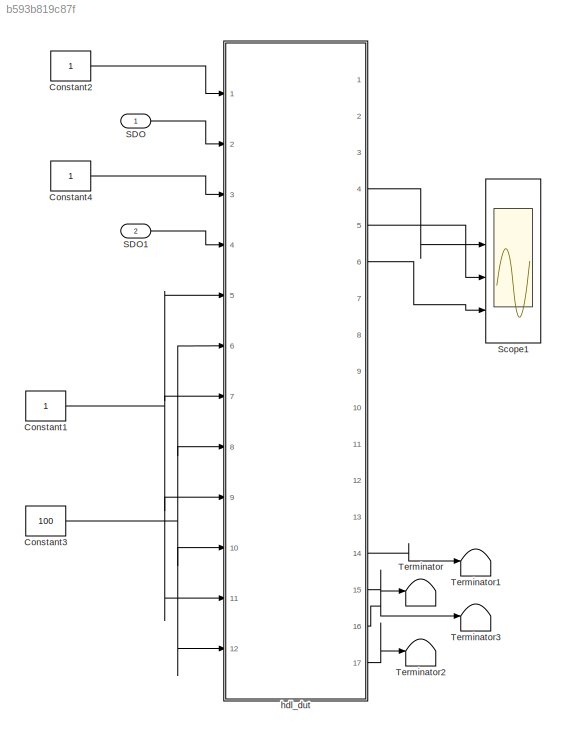
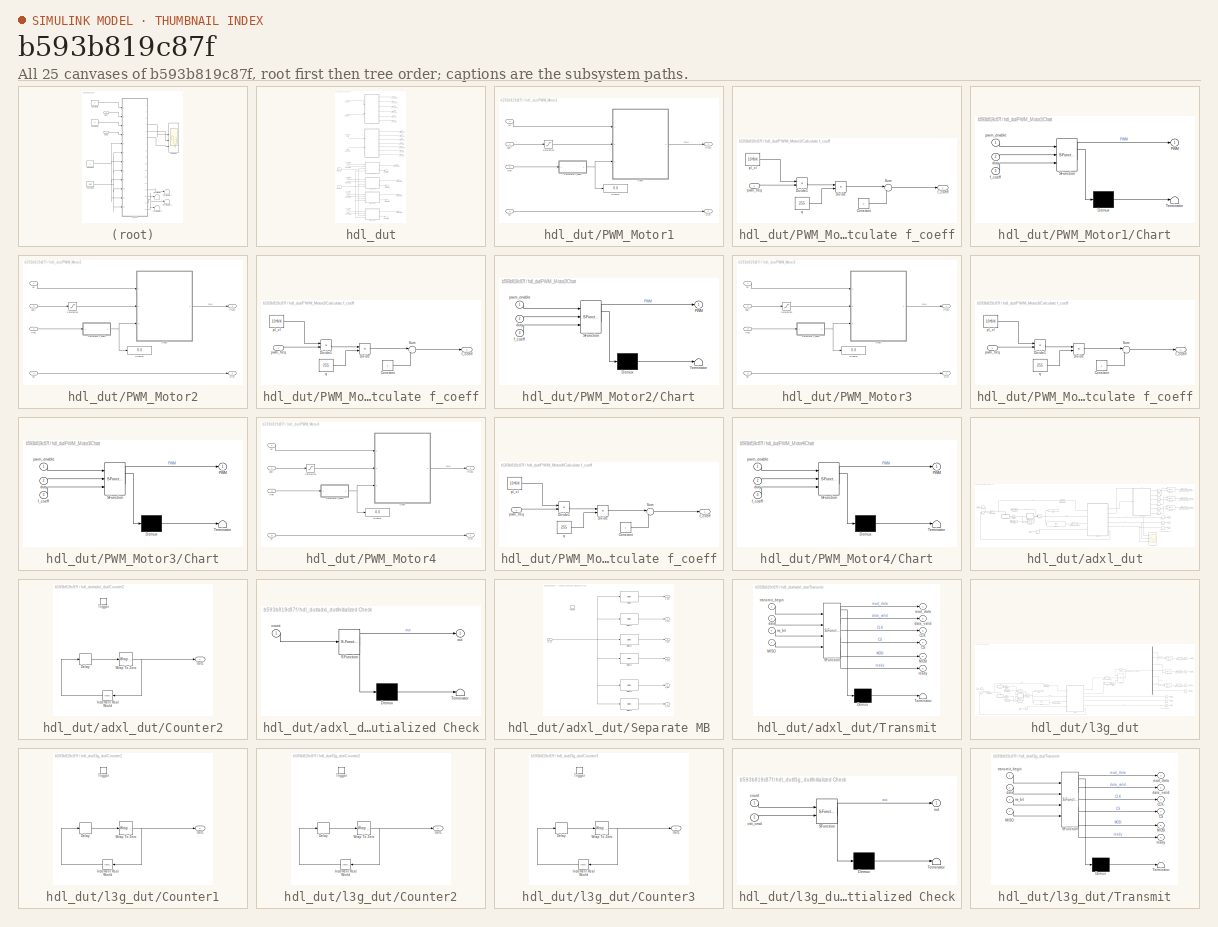
[diagram: thumbnail index - all 25 canvases of the model, root first then tree order]
MODEL slx_b593b819c87f
KIND model
CONFIG AbsTol = auto
CONFIG FixedStep = auto
CONFIG MaxStep = auto
CONFIG MinStep = auto
CONFIG RelTol = 1e-3
CONFIG SampleTimeConstraint = Unconstrained
CONFIG Solver = FixedStepDiscrete
CONFIG SolverMode = Auto
CONFIG SolverName = FixedStepDiscrete
CONFIG StartTime = 0.0
CONFIG StopTime = 100000
WORKSPACE source: MAT-file member
WORKSPACE MCOS: class17 (value not decoded)
BLOCK [Constant] Constant1
  OutDataTypeStr = boolean
  SampleTime = -1
BLOCK [Constant] Constant2
  OutDataTypeStr = boolean
  SampleTime = -1
BLOCK [Constant] Constant3
  OutDataTypeStr = uint8
  SampleTime = -1
  Value = 100
BLOCK [Constant] Constant4
  OutDataTypeStr = boolean
  SampleTime = -1
BLOCK [Inport] SDO
  IconDisplay = Port number
  OutDataTypeStr = boolean
BLOCK [Inport] SDO1
  IconDisplay = Port number
  OutDataTypeStr = boolean
  Port = 2
BLOCK [Scope] Scope1
  Floating = off
  LimitDataPoints = off
  NumInputPorts = 4
  Ports = [4]
  SaveName = ScopeData2
  TickLabels = on
  TimeRange = 2000
  YMax = 5~5~5~5
  YMin = -5~-5~-5~-5
  ZoomMode = xonly
BLOCK [Terminator] Terminator
BLOCK [Terminator] Terminator1
BLOCK [Terminator] Terminator2
BLOCK [Terminator] Terminator3
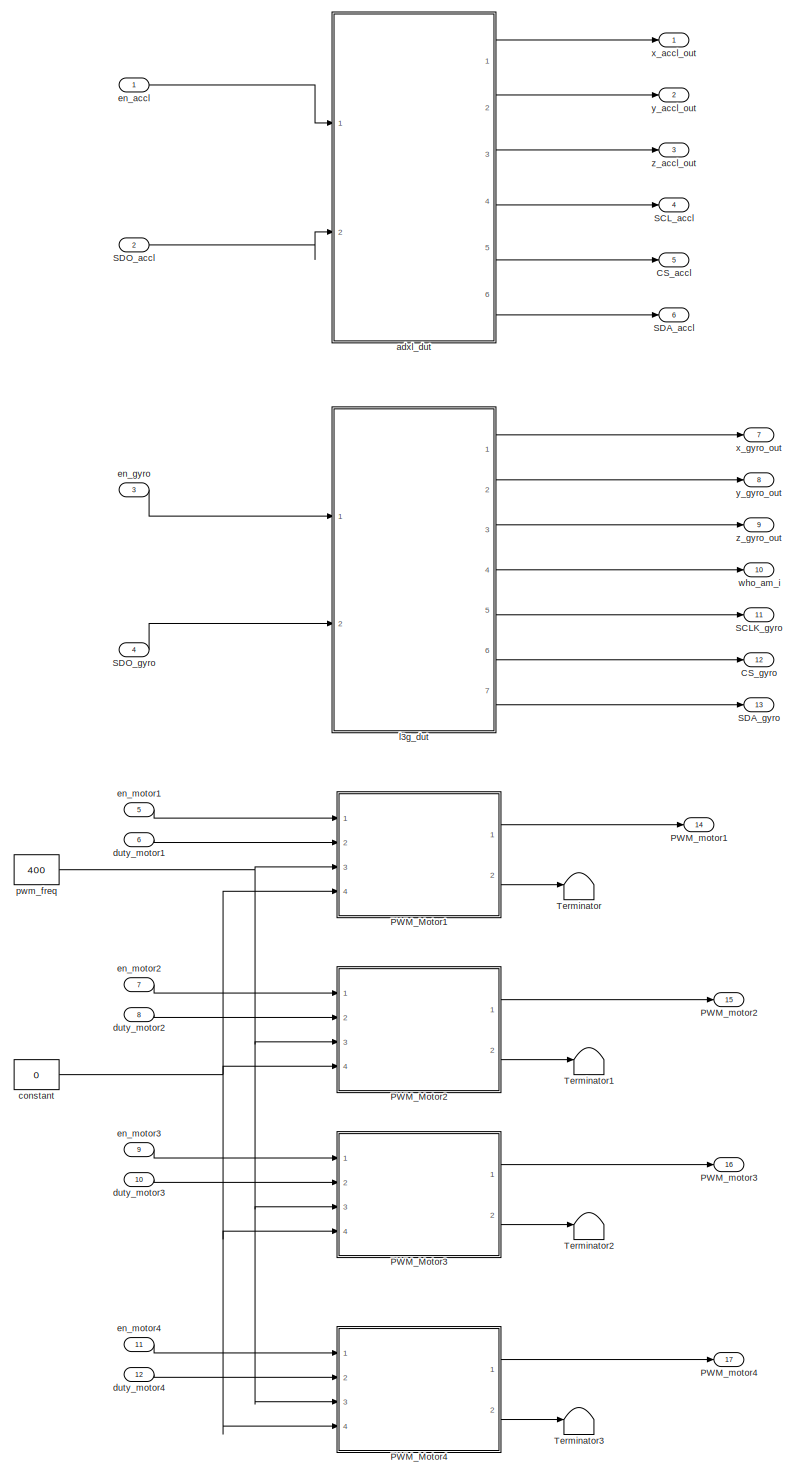
[diagram: hdl_dut - part 1/1, most of the canvas]
BLOCK [SubSystem] hdl_dut
  Ports = [12, 17]
  RequestExecContextInheritance = off
  TreatAsAtomicUnit = on
BLOCK [Outport] hdl_dut/CS_accl
  IconDisplay = Port number
  Port = 5
BLOCK [Outport] hdl_dut/CS_gyro
  IconDisplay = Port number
  Port = 12
BLOCK [SubSystem] hdl_dut/PWM_Motor1
  Ports = [4, 2]
  RequestExecContextInheritance = off
BLOCK [SubSystem] hdl_dut/PWM_Motor1/Calculate f_coeff
  Ports = [1, 1]
  RequestExecContextInheritance = off
  TreatAsAtomicUnit = on
BLOCK [Constant] hdl_dut/PWM_Motor1/Calculate f_coeff/Constant
  OutDataTypeStr = uint32
BLOCK [Product] hdl_dut/PWM_Motor1/Calculate f_coeff/Divide
  InputSameDT = off
  Inputs = */
  OutDataTypeStr = Inherit: Inherit via internal rule
  Ports = [2, 1]
BLOCK [Product] hdl_dut/PWM_Motor1/Calculate f_coeff/Divide1
  InputSameDT = off
  Inputs = */
  OutDataTypeStr = Inherit: Inherit via internal rule
  Ports = [2, 1]
BLOCK [Sum] hdl_dut/PWM_Motor1/Calculate f_coeff/Sum
  AccumDataTypeStr = uint32
  IconShape = round
  InputSameDT = off
  Inputs = |++
  OutDataTypeStr = Inherit: Inherit via internal rule
  Ports = [2, 1]
  RndMeth = Zero
  SaturateOnIntegerOverflow = off
BLOCK [Outport] hdl_dut/PWM_Motor1/Calculate f_coeff/f_coeff
  IconDisplay = Port number
  OutDataTypeStr = uint32
BLOCK [Constant] hdl_dut/PWM_Motor1/Calculate f_coeff/pl_cl
  OutDataTypeStr = uint32
  Value = 10^8/4
BLOCK [Inport] hdl_dut/PWM_Motor1/Calculate f_coeff/pwm_freq
  IconDisplay = Port number
BLOCK [Constant] hdl_dut/PWM_Motor1/Calculate f_coeff/q
  OutDataTypeStr = Inherit: Inherit via back propagation
  Value = 255
BLOCK [SubSystem] hdl_dut/PWM_Motor1/Chart
  ErrorFcn = Stateflow.Translate.translate
  PermitHierarchicalResolution = ExplicitOnly
  Ports = [3, 1]
  RequestExecContextInheritance = off
  SFBlockType = Chart
  TreatAsAtomicUnit = on
BLOCK [Demux] hdl_dut/PWM_Motor1/Chart/ Demux 
  Outputs = 1
  Ports = [1, 1]
BLOCK [S-Function] hdl_dut/PWM_Motor1/Chart/ SFunction 
  EnableBusSupport = on
  FunctionName = sf_sfun
  PortCounts = [3 2]
  Ports = [3, 2]
  Tag = Stateflow S-Function BasicQuadrotorControl 4
BLOCK [Terminator] hdl_dut/PWM_Motor1/Chart/ Terminator 
BLOCK [Outport] hdl_dut/PWM_Motor1/Chart/PWM
  IconDisplay = Port number
BLOCK [Inport] hdl_dut/PWM_Motor1/Chart/duty
  IconDisplay = Port number
  Port = 2
BLOCK [Inport] hdl_dut/PWM_Motor1/Chart/f_coeff
  IconDisplay = Port number
  Port = 3
BLOCK [Inport] hdl_dut/PWM_Motor1/Chart/pwm_enable
  IconDisplay = Port number
BLOCK [Outport] hdl_dut/PWM_Motor1/DIR
  IconDisplay = Port number
  Port = 2
  PortDimensions = 1
  SampleTime = [1,0]
  SamplingMode = Sample based
  SignalType = real
BLOCK [Display] hdl_dut/PWM_Motor1/Display
  Decimation = 1
  Ports = [1]
BLOCK [Outport] hdl_dut/PWM_Motor1/PWM
  IconDisplay = Port number
  OutDataTypeStr = boolean
  PortDimensions = 1
  SampleTime = [1,0]
  SamplingMode = Sample based
  SignalType = real
BLOCK [Saturate] hdl_dut/PWM_Motor1/Saturation
  InputPortMap = u0
  LowerLimit = 0
  OutDataTypeStr = fixdt(0,8,0)
  Ports = [1, 1]
  UpperLimit = 255
BLOCK [Inport] hdl_dut/PWM_Motor1/dir
  IconDisplay = Port number
  OutDataTypeStr = boolean
  Port = 4
  PortDimensions = 1
  SampleTime = [1,0]
  SamplingMode = Sample based
  SignalType = real
BLOCK [Inport] hdl_dut/PWM_Motor1/duty
  IconDisplay = Port number
  OutDataTypeStr = uint8
  Port = 2
  PortDimensions = 1
  SampleTime = [1,0]
  SamplingMode = Sample based
  SignalType = real
BLOCK [Inport] hdl_dut/PWM_Motor1/en
  IconDisplay = Port number
  OutDataTypeStr = boolean
  PortDimensions = 1
  SampleTime = [1,0]
  SamplingMode = Sample based
  SignalType = real
BLOCK [Inport] hdl_dut/PWM_Motor1/freq
  IconDisplay = Port number
  OutDataTypeStr = uint32
  Port = 3
  PortDimensions = 1
  SampleTime = [1,0]
  SamplingMode = Sample based
  SignalType = real
BLOCK [SubSystem] hdl_dut/PWM_Motor2
  Ports = [4, 2]
  RequestExecContextInheritance = off
BLOCK [SubSystem] hdl_dut/PWM_Motor2/Calculate f_coeff
  Ports = [1, 1]
  RequestExecContextInheritance = off
  TreatAsAtomicUnit = on
BLOCK [Constant] hdl_dut/PWM_Motor2/Calculate f_coeff/Constant
  OutDataTypeStr = uint32
BLOCK [Product] hdl_dut/PWM_Motor2/Calculate f_coeff/Divide
  InputSameDT = off
  Inputs = */
  OutDataTypeStr = Inherit: Inherit via internal rule
  Ports = [2, 1]
BLOCK [Product] hdl_dut/PWM_Motor2/Calculate f_coeff/Divide1
  InputSameDT = off
  Inputs = */
  OutDataTypeStr = Inherit: Inherit via internal rule
  Ports = [2, 1]
BLOCK [Sum] hdl_dut/PWM_Motor2/Calculate f_coeff/Sum
  AccumDataTypeStr = uint32
  IconShape = round
  InputSameDT = off
  Inputs = |++
  OutDataTypeStr = Inherit: Inherit via internal rule
  Ports = [2, 1]
  RndMeth = Zero
  SaturateOnIntegerOverflow = off
BLOCK [Outport] hdl_dut/PWM_Motor2/Calculate f_coeff/f_coeff
  IconDisplay = Port number
  OutDataTypeStr = uint32
BLOCK [Constant] hdl_dut/PWM_Motor2/Calculate f_coeff/pl_cl
  OutDataTypeStr = uint32
  Value = 10^8/4
BLOCK [Inport] hdl_dut/PWM_Motor2/Calculate f_coeff/pwm_freq
  IconDisplay = Port number
BLOCK [Constant] hdl_dut/PWM_Motor2/Calculate f_coeff/q
  OutDataTypeStr = Inherit: Inherit via back propagation
  Value = 255
BLOCK [SubSystem] hdl_dut/PWM_Motor2/Chart
  ErrorFcn = Stateflow.Translate.translate
  PermitHierarchicalResolution = ExplicitOnly
  Ports = [3, 1]
  RequestExecContextInheritance = off
  SFBlockType = Chart
  TreatAsAtomicUnit = on
BLOCK [Demux] hdl_dut/PWM_Motor2/Chart/ Demux 
  Outputs = 1
  Ports = [1, 1]
BLOCK [S-Function] hdl_dut/PWM_Motor2/Chart/ SFunction 
  EnableBusSupport = on
  FunctionName = sf_sfun
  PortCounts = [3 2]
  Ports = [3, 2]
  Tag = Stateflow S-Function BasicQuadrotorControl 5
BLOCK [Terminator] hdl_dut/PWM_Motor2/Chart/ Terminator 
BLOCK [Outport] hdl_dut/PWM_Motor2/Chart/PWM
  IconDisplay = Port number
BLOCK [Inport] hdl_dut/PWM_Motor2/Chart/duty
  IconDisplay = Port number
  Port = 2
BLOCK [Inport] hdl_dut/PWM_Motor2/Chart/f_coeff
  IconDisplay = Port number
  Port = 3
BLOCK [Inport] hdl_dut/PWM_Motor2/Chart/pwm_enable
  IconDisplay = Port number
BLOCK [Outport] hdl_dut/PWM_Motor2/DIR
  IconDisplay = Port number
  Port = 2
  PortDimensions = 1
  SampleTime = [1,0]
  SamplingMode = Sample based
  SignalType = real
BLOCK [Display] hdl_dut/PWM_Motor2/Display
  Decimation = 1
  Ports = [1]
BLOCK [Outport] hdl_dut/PWM_Motor2/PWM
  IconDisplay = Port number
  OutDataTypeStr = boolean
  PortDimensions = 1
  SampleTime = [1,0]
  SamplingMode = Sample based
  SignalType = real
BLOCK [Saturate] hdl_dut/PWM_Motor2/Saturation
  InputPortMap = u0
  LowerLimit = 0
  OutDataTypeStr = fixdt(0,8,0)
  Ports = [1, 1]
  UpperLimit = 255
BLOCK [Inport] hdl_dut/PWM_Motor2/dir
  IconDisplay = Port number
  OutDataTypeStr = boolean
  Port = 4
  PortDimensions = 1
  SampleTime = [1,0]
  SamplingMode = Sample based
  SignalType = real
BLOCK [Inport] hdl_dut/PWM_Motor2/duty
  IconDisplay = Port number
  OutDataTypeStr = uint8
  Port = 2
  PortDimensions = 1
  SampleTime = [1,0]
  SamplingMode = Sample based
  SignalType = real
BLOCK [Inport] hdl_dut/PWM_Motor2/en
  IconDisplay = Port number
  OutDataTypeStr = boolean
  PortDimensions = 1
  SampleTime = [1,0]
  SamplingMode = Sample based
  SignalType = real
BLOCK [Inport] hdl_dut/PWM_Motor2/freq
  IconDisplay = Port number
  OutDataTypeStr = uint32
  Port = 3
  PortDimensions = 1
  SampleTime = [1,0]
  SamplingMode = Sample based
  SignalType = real
BLOCK [SubSystem] hdl_dut/PWM_Motor3
  Ports = [4, 2]
  RequestExecContextInheritance = off
BLOCK [SubSystem] hdl_dut/PWM_Motor3/Calculate f_coeff
  Ports = [1, 1]
  RequestExecContextInheritance = off
  TreatAsAtomicUnit = on
BLOCK [Constant] hdl_dut/PWM_Motor3/Calculate f_coeff/Constant
  OutDataTypeStr = uint32
BLOCK [Product] hdl_dut/PWM_Motor3/Calculate f_coeff/Divide
  InputSameDT = off
  Inputs = */
  OutDataTypeStr = Inherit: Inherit via internal rule
  Ports = [2, 1]
BLOCK [Product] hdl_dut/PWM_Motor3/Calculate f_coeff/Divide1
  InputSameDT = off
  Inputs = */
  OutDataTypeStr = Inherit: Inherit via internal rule
  Ports = [2, 1]
BLOCK [Sum] hdl_dut/PWM_Motor3/Calculate f_coeff/Sum
  AccumDataTypeStr = uint32
  IconShape = round
  InputSameDT = off
  Inputs = |++
  OutDataTypeStr = Inherit: Inherit via internal rule
  Ports = [2, 1]
  RndMeth = Zero
  SaturateOnIntegerOverflow = off
BLOCK [Outport] hdl_dut/PWM_Motor3/Calculate f_coeff/f_coeff
  IconDisplay = Port number
  OutDataTypeStr = uint32
BLOCK [Constant] hdl_dut/PWM_Motor3/Calculate f_coeff/pl_cl
  OutDataTypeStr = uint32
  Value = 10^8/4
BLOCK [Inport] hdl_dut/PWM_Motor3/Calculate f_coeff/pwm_freq
  IconDisplay = Port number
BLOCK [Constant] hdl_dut/PWM_Motor3/Calculate f_coeff/q
  OutDataTypeStr = Inherit: Inherit via back propagation
  Value = 255
BLOCK [SubSystem] hdl_dut/PWM_Motor3/Chart
  ErrorFcn = Stateflow.Translate.translate
  PermitHierarchicalResolution = ExplicitOnly
  Ports = [3, 1]
  RequestExecContextInheritance = off
  SFBlockType = Chart
  TreatAsAtomicUnit = on
BLOCK [Demux] hdl_dut/PWM_Motor3/Chart/ Demux 
  Outputs = 1
  Ports = [1, 1]
BLOCK [S-Function] hdl_dut/PWM_Motor3/Chart/ SFunction 
  EnableBusSupport = on
  FunctionName = sf_sfun
  PortCounts = [3 2]
  Ports = [3, 2]
  Tag = Stateflow S-Function BasicQuadrotorControl 6
BLOCK [Terminator] hdl_dut/PWM_Motor3/Chart/ Terminator 
BLOCK [Outport] hdl_dut/PWM_Motor3/Chart/PWM
  IconDisplay = Port number
BLOCK [Inport] hdl_dut/PWM_Motor3/Chart/duty
  IconDisplay = Port number
  Port = 2
BLOCK [Inport] hdl_dut/PWM_Motor3/Chart/f_coeff
  IconDisplay = Port number
  Port = 3
BLOCK [Inport] hdl_dut/PWM_Motor3/Chart/pwm_enable
  IconDisplay = Port number
BLOCK [Outport] hdl_dut/PWM_Motor3/DIR
  IconDisplay = Port number
  Port = 2
  PortDimensions = 1
  SampleTime = [1,0]
  SamplingMode = Sample based
  SignalType = real
BLOCK [Display] hdl_dut/PWM_Motor3/Display
  Decimation = 1
  Ports = [1]
BLOCK [Outport] hdl_dut/PWM_Motor3/PWM
  IconDisplay = Port number
  OutDataTypeStr = boolean
  PortDimensions = 1
  SampleTime = [1,0]
  SamplingMode = Sample based
  SignalType = real
BLOCK [Saturate] hdl_dut/PWM_Motor3/Saturation
  InputPortMap = u0
  LowerLimit = 0
  OutDataTypeStr = fixdt(0,8,0)
  Ports = [1, 1]
  UpperLimit = 255
BLOCK [Inport] hdl_dut/PWM_Motor3/dir
  IconDisplay = Port number
  OutDataTypeStr = boolean
  Port = 4
  PortDimensions = 1
  SampleTime = [1,0]
  SamplingMode = Sample based
  SignalType = real
BLOCK [Inport] hdl_dut/PWM_Motor3/duty
  IconDisplay = Port number
  OutDataTypeStr = uint8
  Port = 2
  PortDimensions = 1
  SampleTime = [1,0]
  SamplingMode = Sample based
  SignalType = real
BLOCK [Inport] hdl_dut/PWM_Motor3/en
  IconDisplay = Port number
  OutDataTypeStr = boolean
  PortDimensions = 1
  SampleTime = [1,0]
  SamplingMode = Sample based
  SignalType = real
BLOCK [Inport] hdl_dut/PWM_Motor3/freq
  IconDisplay = Port number
  OutDataTypeStr = uint32
  Port = 3
  PortDimensions = 1
  SampleTime = [1,0]
  SamplingMode = Sample based
  SignalType = real
BLOCK [SubSystem] hdl_dut/PWM_Motor4
  Ports = [4, 2]
  RequestExecContextInheritance = off
BLOCK [SubSystem] hdl_dut/PWM_Motor4/Calculate f_coeff
  Ports = [1, 1]
  RequestExecContextInheritance = off
  TreatAsAtomicUnit = on
BLOCK [Constant] hdl_dut/PWM_Motor4/Calculate f_coeff/Constant
  OutDataTypeStr = uint32
BLOCK [Product] hdl_dut/PWM_Motor4/Calculate f_coeff/Divide
  InputSameDT = off
  Inputs = */
  OutDataTypeStr = Inherit: Inherit via internal rule
  Ports = [2, 1]
BLOCK [Product] hdl_dut/PWM_Motor4/Calculate f_coeff/Divide1
  InputSameDT = off
  Inputs = */
  OutDataTypeStr = Inherit: Inherit via internal rule
  Ports = [2, 1]
BLOCK [Sum] hdl_dut/PWM_Motor4/Calculate f_coeff/Sum
  AccumDataTypeStr = uint32
  IconShape = round
  InputSameDT = off
  Inputs = |++
  OutDataTypeStr = Inherit: Inherit via internal rule
  Ports = [2, 1]
  RndMeth = Zero
  SaturateOnIntegerOverflow = off
BLOCK [Outport] hdl_dut/PWM_Motor4/Calculate f_coeff/f_coeff
  IconDisplay = Port number
  OutDataTypeStr = uint32
BLOCK [Constant] hdl_dut/PWM_Motor4/Calculate f_coeff/pl_cl
  OutDataTypeStr = uint32
  Value = 10^8/4
BLOCK [Inport] hdl_dut/PWM_Motor4/Calculate f_coeff/pwm_freq
  IconDisplay = Port number
BLOCK [Constant] hdl_dut/PWM_Motor4/Calculate f_coeff/q
  OutDataTypeStr = Inherit: Inherit via back propagation
  Value = 255
BLOCK [SubSystem] hdl_dut/PWM_Motor4/Chart
  ErrorFcn = Stateflow.Translate.translate
  PermitHierarchicalResolution = ExplicitOnly
  Ports = [3, 1]
  RequestExecContextInheritance = off
  SFBlockType = Chart
  TreatAsAtomicUnit = on
BLOCK [Demux] hdl_dut/PWM_Motor4/Chart/ Demux 
  Outputs = 1
  Ports = [1, 1]
BLOCK [S-Function] hdl_dut/PWM_Motor4/Chart/ SFunction 
  EnableBusSupport = on
  FunctionName = sf_sfun
  PortCounts = [3 2]
  Ports = [3, 2]
  Tag = Stateflow S-Function BasicQuadrotorControl 7
BLOCK [Terminator] hdl_dut/PWM_Motor4/Chart/ Terminator 
BLOCK [Outport] hdl_dut/PWM_Motor4/Chart/PWM
  IconDisplay = Port number
BLOCK [Inport] hdl_dut/PWM_Motor4/Chart/duty
  IconDisplay = Port number
  Port = 2
BLOCK [Inport] hdl_dut/PWM_Motor4/Chart/f_coeff
  IconDisplay = Port number
  Port = 3
BLOCK [Inport] hdl_dut/PWM_Motor4/Chart/pwm_enable
  IconDisplay = Port number
BLOCK [Outport] hdl_dut/PWM_Motor4/DIR
  IconDisplay = Port number
  Port = 2
  PortDimensions = 1
  SampleTime = [1,0]
  SamplingMode = Sample based
  SignalType = real
BLOCK [Display] hdl_dut/PWM_Motor4/Display
  Decimation = 1
  Ports = [1]
BLOCK [Outport] hdl_dut/PWM_Motor4/PWM
  IconDisplay = Port number
  OutDataTypeStr = boolean
  PortDimensions = 1
  SampleTime = [1,0]
  SamplingMode = Sample based
  SignalType = real
BLOCK [Saturate] hdl_dut/PWM_Motor4/Saturation
  InputPortMap = u0
  LowerLimit = 0
  OutDataTypeStr = fixdt(0,8,0)
  Ports = [1, 1]
  UpperLimit = 255
BLOCK [Inport] hdl_dut/PWM_Motor4/dir
  IconDisplay = Port number
  OutDataTypeStr = boolean
  Port = 4
  PortDimensions = 1
  SampleTime = [1,0]
  SamplingMode = Sample based
  SignalType = real
BLOCK [Inport] hdl_dut/PWM_Motor4/duty
  IconDisplay = Port number
  OutDataTypeStr = uint8
  Port = 2
  PortDimensions = 1
  SampleTime = [1,0]
  SamplingMode = Sample based
  SignalType = real
BLOCK [Inport] hdl_dut/PWM_Motor4/en
  IconDisplay = Port number
  OutDataTypeStr = boolean
  PortDimensions = 1
  SampleTime = [1,0]
  SamplingMode = Sample based
  SignalType = real
BLOCK [Inport] hdl_dut/PWM_Motor4/freq
  IconDisplay = Port number
  OutDataTypeStr = uint32
  Port = 3
  PortDimensions = 1
  SampleTime = [1,0]
  SamplingMode = Sample based
  SignalType = real
BLOCK [Outport] hdl_dut/PWM_motor1
  IconDisplay = Port number
  OutDataTypeStr = boolean
  Port = 14
BLOCK [Outport] hdl_dut/PWM_motor2
  IconDisplay = Port number
  OutDataTypeStr = boolean
  Port = 15
BLOCK [Outport] hdl_dut/PWM_motor3
  IconDisplay = Port number
  OutDataTypeStr = boolean
  Port = 16
BLOCK [Outport] hdl_dut/PWM_motor4
  IconDisplay = Port number
  OutDataTypeStr = boolean
  Port = 17
BLOCK [Outport] hdl_dut/SCLK_gyro
  IconDisplay = Port number
  Port = 11
BLOCK [Outport] hdl_dut/SCL_accl
  IconDisplay = Port number
  Port = 4
BLOCK [Outport] hdl_dut/SDA_accl
  IconDisplay = Port number
  Port = 6
BLOCK [Outport] hdl_dut/SDA_gyro
  IconDisplay = Port number
  Port = 13
BLOCK [Inport] hdl_dut/SDO_accl
  IconDisplay = Port number
  Port = 2
BLOCK [Inport] hdl_dut/SDO_gyro
  IconDisplay = Port number
  Port = 4
BLOCK [Terminator] hdl_dut/Terminator
BLOCK [Terminator] hdl_dut/Terminator1
BLOCK [Terminator] hdl_dut/Terminator2
BLOCK [Terminator] hdl_dut/Terminator3
BLOCK [SubSystem] hdl_dut/adxl_dut
  MinMaxOverflowLogging = MinMaxAndOverflow
  Ports = [2, 6]
  RequestExecContextInheritance = off
  TreatAsAtomicUnit = on
BLOCK [Reference] hdl_dut/adxl_dut/Bit Concat  REF=hdlsllib/HDL Operations/Bit Concat
  Ports = [2, 1]
  SourceBlock = hdlsllib/HDL Operations/Bit Concat
  SourceType = Bit Concat
  numInputs = 2
BLOCK [Reference] hdl_dut/adxl_dut/Bit Concat1  REF=hdlsllib/HDL Operations/Bit Concat
  Ports = [2, 1]
  SourceBlock = hdlsllib/HDL Operations/Bit Concat
  SourceType = Bit Concat
  numInputs = 2
BLOCK [Reference] hdl_dut/adxl_dut/Bit Concat2  REF=hdlsllib/HDL Operations/Bit Concat
  Ports = [2, 1]
  SourceBlock = hdlsllib/HDL Operations/Bit Concat
  SourceType = Bit Concat
  numInputs = 2
BLOCK [Reference] hdl_dut/adxl_dut/Bit Slice2  REF=hdlsllib/HDL Operations/Bit Slice
  Ports = [1, 1]
  SourceBlock = hdlsllib/HDL Operations/Bit Slice
  SourceType = Bit Slice
  lidx = message_length-1
  ridx = message_length-1
BLOCK [Outport] hdl_dut/adxl_dut/CS
  IconDisplay = Port number
  Port = 5
BLOCK [Constant] hdl_dut/adxl_dut/Constant1
  OutDataTypeStr = uint16
  SampleTime = 1
  Value = [init_cmd_ADXL]
BLOCK [Constant] hdl_dut/adxl_dut/Constant2
  OutDataTypeStr = uint16
  SampleTime = 1
  Value = read_table_ADXL
BLOCK [SubSystem] hdl_dut/adxl_dut/Counter2
  Ports = [0, 1, 0, 1]
  RequestExecContextInheritance = off
  TreatAsAtomicUnit = on
BLOCK [Delay] hdl_dut/adxl_dut/Counter2/Delay
  DelayLength = 1
  InitialCondition = 1
  InputPortMap = u0
  Ports = [1, 1]
BLOCK [Reference] hdl_dut/adxl_dut/Counter2/Increment Real World  REF=simulink/Additional Math
& Discrete/Additional Math:
Increment - Decrement/Increment
Real World
  Ports = [1, 1]
  SourceBlock = simulink/Additional Math\n& Discrete/Additional Math:\nIncrement - Decrement/Increment\nReal World
  SourceType = Real World Value Increment
BLOCK [Outport] hdl_dut/adxl_dut/Counter2/Out1
  IconDisplay = Port number
  InitialOutput = 0
  OutDataTypeStr = int16
BLOCK [TriggerPort] hdl_dut/adxl_dut/Counter2/Trigger
  PortDimensions = 1
  Ports = []
  StatesWhenEnabling = held
BLOCK [Reference] hdl_dut/adxl_dut/Counter2/Wrap To Zero  REF=simulink/Discontinuities/Wrap To Zero
  DisableCoverage = on
  Ports = [1, 1]
  SourceBlock = simulink/Discontinuities/Wrap To Zero
  SourceType = Wrap To Zero
  Threshold = size(init_cmd_ADXL,2)-1
BLOCK [DataTypeConversion] hdl_dut/adxl_dut/Data Type Conversion1
  ConvertRealWorld = Stored Integer (SI)
  OutDataTypeStr = int16
  RndMeth = Floor
  SaturateOnIntegerOverflow = off
BLOCK [DataTypeConversion] hdl_dut/adxl_dut/Data Type Conversion2
  RndMeth = Floor
  SaturateOnIntegerOverflow = off
BLOCK [DataTypeConversion] hdl_dut/adxl_dut/Data Type Conversion3
  ConvertRealWorld = Stored Integer (SI)
  OutDataTypeStr = int16
  RndMeth = Floor
  SaturateOnIntegerOverflow = off
BLOCK [DataTypeConversion] hdl_dut/adxl_dut/Data Type Conversion7
  ConvertRealWorld = Stored Integer (SI)
  OutDataTypeStr = int16
  RndMeth = Floor
  SaturateOnIntegerOverflow = off
BLOCK [Delay] hdl_dut/adxl_dut/Delay1
  DelayLength = 1
  InitialCondition = 1
  InputPortMap = u0
  Ports = [1, 1]
BLOCK [Delay] hdl_dut/adxl_dut/Delay17
  DelayLength = 1
  InitialCondition = 0
  InputPortMap = u0
  Ports = [1, 1]
BLOCK [Delay] hdl_dut/adxl_dut/Delay18
  DelayLength = 1
  InitialCondition = 0
  InputPortMap = u0
  Ports = [1, 1]
BLOCK [Delay] hdl_dut/adxl_dut/Delay19
  DelayLength = 1
  InitialCondition = 0
  InputPortMap = u0
  Ports = [1, 1]
BLOCK [Delay] hdl_dut/adxl_dut/Delay2
  DelayLength = 1
  InitialCondition = 1
  InputPortMap = u0
  Ports = [1, 1]
BLOCK [Delay] hdl_dut/adxl_dut/Delay3
  DelayLength = 1
  InitialCondition = 1
  InputPortMap = u0
  Ports = [1, 1]
BLOCK [Delay] hdl_dut/adxl_dut/Delay4
  DelayLength = 1
  InitialCondition = 0
  InputPortMap = u0
  Ports = [1, 1]
BLOCK [Delay] hdl_dut/adxl_dut/Delay5
  DelayLength = 1
  InitialCondition = 0
  InputPortMap = u0
  Ports = [1, 1]
BLOCK [Delay] hdl_dut/adxl_dut/Delay6
  DelayLength = 1
  InitialCondition = 0
  InputPortMap = u0
  Ports = [1, 1]
BLOCK [Delay] hdl_dut/adxl_dut/Delay7
  DelayLength = 1
  InitialCondition = 0
  InputPortMap = u0
  Ports = [1, 1]
BLOCK [Delay] hdl_dut/adxl_dut/Delay8
  DelayLength = 1
  InitialCondition = 0
  InputPortMap = u0
  Ports = [1, 1]
BLOCK [Delay] hdl_dut/adxl_dut/Delay9
  DelayLength = 1
  InitialCondition = 0
  InputPortMap = u0
  Ports = [1, 1]
BLOCK [Reference] hdl_dut/adxl_dut/Detect Increase1  REF=simulink/Logic and Bit
Operations/Detect
Increase
  InputProcessing = Inherited
  OutDataTypeStr = boolean
  Ports = [1, 1]
  SourceBlock = simulink/Logic and Bit\nOperations/Detect\nIncrease
  SourceType = Detect Increase
  vinit = 0
BLOCK [Display] hdl_dut/adxl_dut/Display
  Decimation = 1
  Format = binary (Stored Integer)
  Ports = [1]
BLOCK [Reference] hdl_dut/adxl_dut/Increment Real World  REF=simulink/Additional Math
& Discrete/Additional Math:
Increment - Decrement/Increment
Real World
  Ports = [1, 1]
  SourceBlock = simulink/Additional Math\n& Discrete/Additional Math:\nIncrement - Decrement/Increment\nReal World
  SourceType = Real World Value Increment
BLOCK [SubSystem] hdl_dut/adxl_dut/Initialized Check
  ErrorFcn = Stateflow.Translate.translate
  PermitHierarchicalResolution = ExplicitOnly
  Ports = [1, 1]
  RequestExecContextInheritance = off
  SFBlockType = MATLAB Function
  TreatAsAtomicUnit = on
BLOCK [Demux] hdl_dut/adxl_dut/Initialized Check/ Demux 
  Outputs = 1
  Ports = [1, 1]
BLOCK [S-Function] hdl_dut/adxl_dut/Initialized Check/ SFunction 
  EnableBusSupport = on
  FunctionName = sf_sfun
  PortCounts = [1 2]
  Ports = [1, 2]
  Tag = Stateflow S-Function BasicQuadrotorControl 2
BLOCK [Terminator] hdl_dut/adxl_dut/Initialized Check/ Terminator 
BLOCK [Inport] hdl_dut/adxl_dut/Initialized Check/count
  IconDisplay = Port number
BLOCK [Outport] hdl_dut/adxl_dut/Initialized Check/out
  IconDisplay = Port number
BLOCK [Logic] hdl_dut/adxl_dut/Logical Operator
  AllPortsSameDT = off
  OutDataTypeStr = boolean
  Ports = [2, 1]
BLOCK [Outport] hdl_dut/adxl_dut/SCLK
  IconDisplay = Port number
  Port = 4
BLOCK [Outport] hdl_dut/adxl_dut/SDI
  IconDisplay = Port number
  Port = 6
BLOCK [Inport] hdl_dut/adxl_dut/SDO
  IconDisplay = Port number
  Port = 2
BLOCK [Scope] hdl_dut/adxl_dut/Scope
  Floating = off
  LimitDataPoints = off
  NumInputPorts = 3
  Ports = [3]
  YMax = 5~5~5
  YMin = -5~-5~-5
  ZoomMode = xonly
BLOCK [Selector] hdl_dut/adxl_dut/Selector1
  IndexOptions = Index vector (port)
  Indices = [1 3]
  InputPortWidth = size(init_cmd_ADXL,2)
  Ports = [2, 1]
BLOCK [SubSystem] hdl_dut/adxl_dut/Separate MB
  Ports = [1, 6, 0, 1]
  RequestExecContextInheritance = off
  TreatAsAtomicUnit = on
BLOCK [Reference] hdl_dut/adxl_dut/Separate MB/Bit Slice  REF=hdlsllib/HDL Operations/Bit Slice
  Ports = [1, 1]
  SourceBlock = hdlsllib/HDL Operations/Bit Slice
  SourceType = Bit Slice
  lidx = 47
  ridx = 40
BLOCK [Reference] hdl_dut/adxl_dut/Separate MB/Bit Slice1  REF=hdlsllib/HDL Operations/Bit Slice
  Ports = [1, 1]
  SourceBlock = hdlsllib/HDL Operations/Bit Slice
  SourceType = Bit Slice
  lidx = 39
  ridx = 32
BLOCK [Reference] hdl_dut/adxl_dut/Separate MB/Bit Slice2  REF=hdlsllib/HDL Operations/Bit Slice
  Ports = [1, 1]
  SourceBlock = hdlsllib/HDL Operations/Bit Slice
  SourceType = Bit Slice
  lidx = 31
  ridx = 24
BLOCK [Reference] hdl_dut/adxl_dut/Separate MB/Bit Slice3  REF=hdlsllib/HDL Operations/Bit Slice
  Ports = [1, 1]
  SourceBlock = hdlsllib/HDL Operations/Bit Slice
  SourceType = Bit Slice
  lidx = 23
  ridx = 16
BLOCK [Reference] hdl_dut/adxl_dut/Separate MB/Bit Slice4  REF=hdlsllib/HDL Operations/Bit Slice
  Ports = [1, 1]
  SourceBlock = hdlsllib/HDL Operations/Bit Slice
  SourceType = Bit Slice
  lidx = 15
  ridx = 8
BLOCK [Reference] hdl_dut/adxl_dut/Separate MB/Bit Slice5  REF=hdlsllib/HDL Operations/Bit Slice
  Ports = [1, 1]
  SourceBlock = hdlsllib/HDL Operations/Bit Slice
  SourceType = Bit Slice
  lidx = 7
  ridx = 0
BLOCK [TriggerPort] hdl_dut/adxl_dut/Separate MB/Trigger
  PortDimensions = 1
  Ports = []
  StatesWhenEnabling = held
BLOCK [Outport] hdl_dut/adxl_dut/Separate MB/X_low
  IconDisplay = Port number
  InitialOutput = 0
BLOCK [Outport] hdl_dut/adxl_dut/Separate MB/X_out
  IconDisplay = Port number
  InitialOutput = 0
  Port = 2
BLOCK [Outport] hdl_dut/adxl_dut/Separate MB/Y_low
  IconDisplay = Port number
  InitialOutput = 0
  Port = 3
BLOCK [Outport] hdl_dut/adxl_dut/Separate MB/Y_out
  IconDisplay = Port number
  InitialOutput = 0
  Port = 4
BLOCK [Outport] hdl_dut/adxl_dut/Separate MB/Z_low
  IconDisplay = Port number
  InitialOutput = 0
  Port = 5
BLOCK [Outport] hdl_dut/adxl_dut/Separate MB/Z_out
  IconDisplay = Port number
  InitialOutput = 0
  Port = 6
BLOCK [Inport] hdl_dut/adxl_dut/Separate MB/in_48
  IconDisplay = Port number
BLOCK [Switch] hdl_dut/adxl_dut/Switch
  Criteria = u2 > Threshold
  InputSameDT = off
  SaturateOnIntegerOverflow = off
BLOCK [SubSystem] hdl_dut/adxl_dut/Transmit
  ErrorFcn = Stateflow.Translate.translate
  PermitHierarchicalResolution = ExplicitOnly
  Ports = [4, 6]
  RequestExecContextInheritance = off
  SFBlockType = Chart
  TreatAsAtomicUnit = on
BLOCK [Demux] hdl_dut/adxl_dut/Transmit/ Demux 
  Outputs = 1
  Ports = [1, 1]
BLOCK [S-Function] hdl_dut/adxl_dut/Transmit/ SFunction 
  EnableBusSupport = on
  FunctionName = sf_sfun
  PortCounts = [4 7]
  Ports = [4, 7]
  Tag = Stateflow S-Function BasicQuadrotorControl 1
BLOCK [Terminator] hdl_dut/adxl_dut/Transmit/ Terminator 
BLOCK [Outport] hdl_dut/adxl_dut/Transmit/CLK
  IconDisplay = Port number
  Port = 3
BLOCK [Outport] hdl_dut/adxl_dut/Transmit/CS
  IconDisplay = Port number
  Port = 4
BLOCK [Inport] hdl_dut/adxl_dut/Transmit/MISO
  IconDisplay = Port number
  Port = 4
BLOCK [Outport] hdl_dut/adxl_dut/Transmit/MOSI
  IconDisplay = Port number
  Port = 5
BLOCK [Inport] hdl_dut/adxl_dut/Transmit/data
  IconDisplay = Port number
  Port = 2
BLOCK [Outport] hdl_dut/adxl_dut/Transmit/data_valid
  IconDisplay = Port number
  Port = 2
BLOCK [Outport] hdl_dut/adxl_dut/Transmit/read_data
  IconDisplay = Port number
BLOCK [Outport] hdl_dut/adxl_dut/Transmit/ready
  IconDisplay = Port number
  Port = 6
BLOCK [Inport] hdl_dut/adxl_dut/Transmit/rw_bit
  IconDisplay = Port number
  Port = 3
BLOCK [Inport] hdl_dut/adxl_dut/Transmit/transmit_begin
  IconDisplay = Port number
BLOCK [Inport] hdl_dut/adxl_dut/enable
  IconDisplay = Port number
BLOCK [Outport] hdl_dut/adxl_dut/x_accl_out
  IconDisplay = Port number
BLOCK [Outport] hdl_dut/adxl_dut/y_accl_out
  IconDisplay = Port number
  Port = 2
BLOCK [Outport] hdl_dut/adxl_dut/z_accl_out
  IconDisplay = Port number
  Port = 3
BLOCK [Constant] hdl_dut/constant
  OutDataTypeStr = boolean
  SampleTime = -1
  Value = 0
BLOCK [Inport] hdl_dut/duty_motor1
  IconDisplay = Port number
  Port = 6
BLOCK [Inport] hdl_dut/duty_motor2
  IconDisplay = Port number
  Port = 8
BLOCK [Inport] hdl_dut/duty_motor3
  IconDisplay = Port number
  Port = 10
BLOCK [Inport] hdl_dut/duty_motor4
  IconDisplay = Port number
  Port = 12
BLOCK [Inport] hdl_dut/en_accl
  IconDisplay = Port number
BLOCK [Inport] hdl_dut/en_gyro
  IconDisplay = Port number
  Port = 3
BLOCK [Inport] hdl_dut/en_motor1
  IconDisplay = Port number
  Port = 5
BLOCK [Inport] hdl_dut/en_motor2
  IconDisplay = Port number
  Port = 7
BLOCK [Inport] hdl_dut/en_motor3
  IconDisplay = Port number
  Port = 9
BLOCK [Inport] hdl_dut/en_motor4
  IconDisplay = Port number
  Port = 11
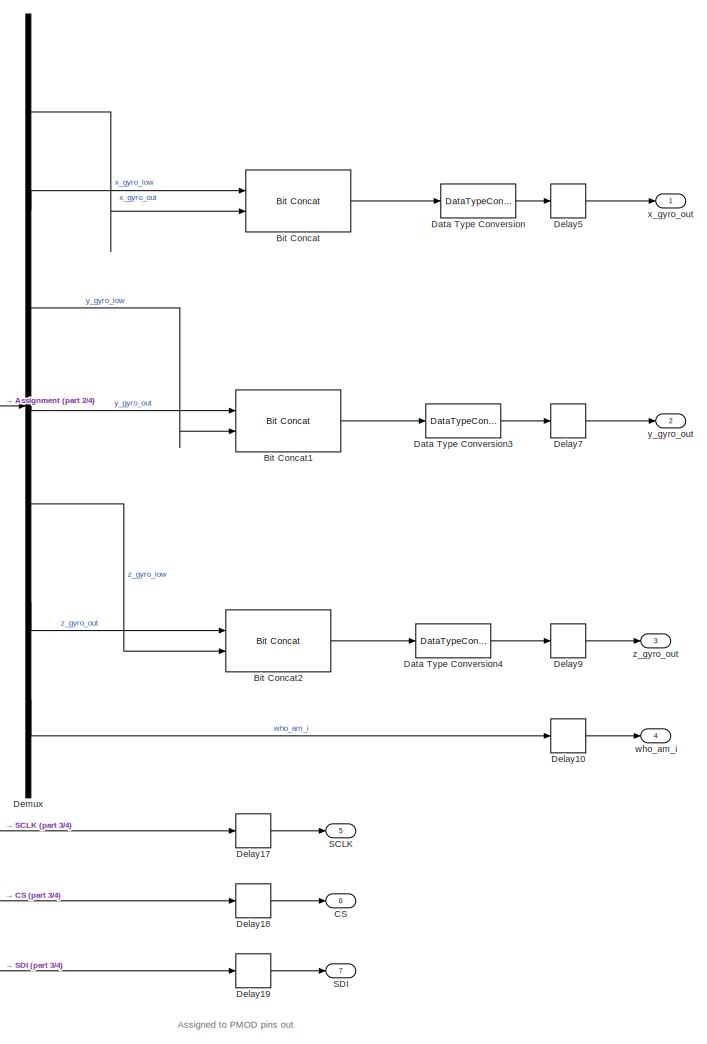
[diagram: hdl_dut/l3g_dut - part 1/4, right side, full height]
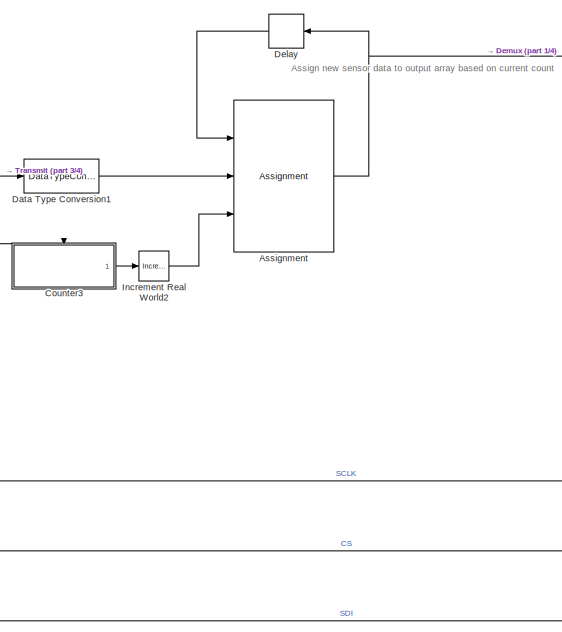
[diagram: hdl_dut/l3g_dut - part 2/4, central region]
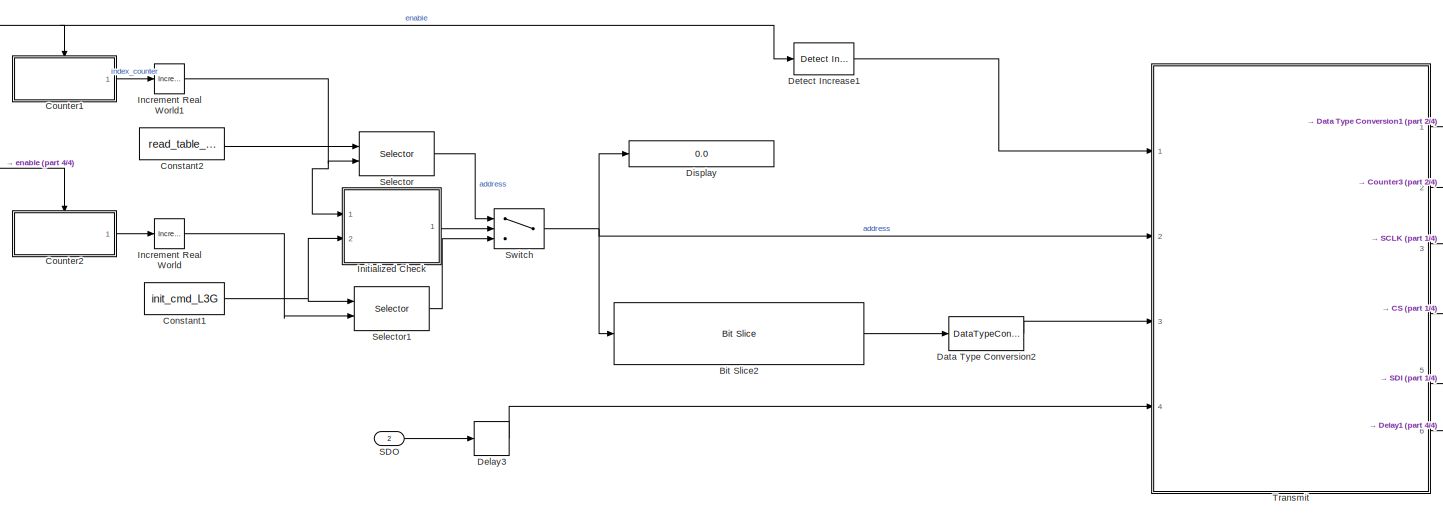
[diagram: hdl_dut/l3g_dut - part 3/4, bottom left region]
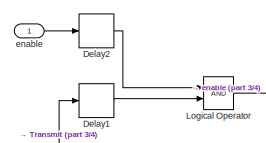
[diagram: hdl_dut/l3g_dut - part 4/4, middle left region]
BLOCK [SubSystem] hdl_dut/l3g_dut
  MinMaxOverflowLogging = MinMaxAndOverflow
  Ports = [2, 7]
  RequestExecContextInheritance = off
  TreatAsAtomicUnit = on
BLOCK [Assignment] hdl_dut/l3g_dut/Assignment
  DiagnosticForDimensions = Warning
  IndexOptions = Index vector (port)
  OutputSizes = size(read_table,2)
  Ports = [3, 1]
BLOCK [Reference] hdl_dut/l3g_dut/Bit Concat  REF=hdlsllib/HDL Operations/Bit Concat
  Ports = [2, 1]
  SourceBlock = hdlsllib/HDL Operations/Bit Concat
  SourceType = Bit Concat
  numInputs = 2
BLOCK [Reference] hdl_dut/l3g_dut/Bit Concat1  REF=hdlsllib/HDL Operations/Bit Concat
  Ports = [2, 1]
  SourceBlock = hdlsllib/HDL Operations/Bit Concat
  SourceType = Bit Concat
  numInputs = 2
BLOCK [Reference] hdl_dut/l3g_dut/Bit Concat2  REF=hdlsllib/HDL Operations/Bit Concat
  Ports = [2, 1]
  SourceBlock = hdlsllib/HDL Operations/Bit Concat
  SourceType = Bit Concat
  numInputs = 2
BLOCK [Reference] hdl_dut/l3g_dut/Bit Slice2  REF=hdlsllib/HDL Operations/Bit Slice
  Ports = [1, 1]
  SourceBlock = hdlsllib/HDL Operations/Bit Slice
  SourceType = Bit Slice
  lidx = message_length-1
  ridx = message_length-1
BLOCK [Outport] hdl_dut/l3g_dut/CS
  IconDisplay = Port number
  Port = 6
BLOCK [Constant] hdl_dut/l3g_dut/Constant1
  OutDataTypeStr = uint16
  SampleTime = 1
  Value = init_cmd_L3G
BLOCK [Constant] hdl_dut/l3g_dut/Constant2
  OutDataTypeStr = uint16
  SampleTime = 1
  Value = read_table_L3G
BLOCK [SubSystem] hdl_dut/l3g_dut/Counter1
  Ports = [0, 1, 0, 1]
  RequestExecContextInheritance = off
  TreatAsAtomicUnit = on
BLOCK [Delay] hdl_dut/l3g_dut/Counter1/Delay
  DelayLength = 1
  InitialCondition = 1
  InputPortMap = u0
  Ports = [1, 1]
BLOCK [Reference] hdl_dut/l3g_dut/Counter1/Increment Real World  REF=simulink/Additional Math
& Discrete/Additional Math:
Increment - Decrement/Increment
Real World
  Ports = [1, 1]
  SourceBlock = simulink/Additional Math\n& Discrete/Additional Math:\nIncrement - Decrement/Increment\nReal World
  SourceType = Real World Value Increment
BLOCK [Outport] hdl_dut/l3g_dut/Counter1/Out1
  IconDisplay = Port number
  InitialOutput = 0
  OutDataTypeStr = int16
BLOCK [TriggerPort] hdl_dut/l3g_dut/Counter1/Trigger
  PortDimensions = 1
  Ports = []
  StatesWhenEnabling = held
BLOCK [Reference] hdl_dut/l3g_dut/Counter1/Wrap To Zero  REF=simulink/Discontinuities/Wrap To Zero
  DisableCoverage = on
  Ports = [1, 1]
  SourceBlock = simulink/Discontinuities/Wrap To Zero
  SourceType = Wrap To Zero
  Threshold = size(read_table_L3G,2)-1
BLOCK [SubSystem] hdl_dut/l3g_dut/Counter2
  Ports = [0, 1, 0, 1]
  RequestExecContextInheritance = off
  TreatAsAtomicUnit = on
BLOCK [Delay] hdl_dut/l3g_dut/Counter2/Delay
  DelayLength = 1
  InitialCondition = 1
  InputPortMap = u0
  Ports = [1, 1]
BLOCK [Reference] hdl_dut/l3g_dut/Counter2/Increment Real World  REF=simulink/Additional Math
& Discrete/Additional Math:
Increment - Decrement/Increment
Real World
  Ports = [1, 1]
  SourceBlock = simulink/Additional Math\n& Discrete/Additional Math:\nIncrement - Decrement/Increment\nReal World
  SourceType = Real World Value Increment
BLOCK [Outport] hdl_dut/l3g_dut/Counter2/Out1
  IconDisplay = Port number
  InitialOutput = 0
  OutDataTypeStr = int16
BLOCK [TriggerPort] hdl_dut/l3g_dut/Counter2/Trigger
  PortDimensions = 1
  Ports = []
  StatesWhenEnabling = held
BLOCK [Reference] hdl_dut/l3g_dut/Counter2/Wrap To Zero  REF=simulink/Discontinuities/Wrap To Zero
  DisableCoverage = on
  Ports = [1, 1]
  SourceBlock = simulink/Discontinuities/Wrap To Zero
  SourceType = Wrap To Zero
  Threshold = size(init_cmd_L3G,2)-1
BLOCK [SubSystem] hdl_dut/l3g_dut/Counter3
  Ports = [0, 1, 0, 1]
  RequestExecContextInheritance = off
  TreatAsAtomicUnit = on
BLOCK [Delay] hdl_dut/l3g_dut/Counter3/Delay
  DelayLength = 1
  InitialCondition = 0
  InputPortMap = u0
  Ports = [1, 1]
BLOCK [Reference] hdl_dut/l3g_dut/Counter3/Increment Real World  REF=simulink/Additional Math
& Discrete/Additional Math:
Increment - Decrement/Increment
Real World
  Ports = [1, 1]
  SourceBlock = simulink/Additional Math\n& Discrete/Additional Math:\nIncrement - Decrement/Increment\nReal World
  SourceType = Real World Value Increment
BLOCK [Outport] hdl_dut/l3g_dut/Counter3/Out1
  IconDisplay = Port number
  InitialOutput = 0
  OutDataTypeStr = int16
BLOCK [TriggerPort] hdl_dut/l3g_dut/Counter3/Trigger
  PortDimensions = 1
  Ports = []
  StatesWhenEnabling = held
BLOCK [Reference] hdl_dut/l3g_dut/Counter3/Wrap To Zero  REF=simulink/Discontinuities/Wrap To Zero
  DisableCoverage = on
  Ports = [1, 1]
  SourceBlock = simulink/Discontinuities/Wrap To Zero
  SourceType = Wrap To Zero
  Threshold = size(read_table_L3G,2)-1
BLOCK [DataTypeConversion] hdl_dut/l3g_dut/Data Type Conversion
  OutDataTypeStr = int16
  RndMeth = Floor
  SaturateOnIntegerOverflow = off
BLOCK [DataTypeConversion] hdl_dut/l3g_dut/Data Type Conversion1
  ConvertRealWorld = Stored Integer (SI)
  OutDataTypeStr = int8
  RndMeth = Floor
  SaturateOnIntegerOverflow = off
BLOCK [DataTypeConversion] hdl_dut/l3g_dut/Data Type Conversion2
  RndMeth = Floor
  SaturateOnIntegerOverflow = off
BLOCK [DataTypeConversion] hdl_dut/l3g_dut/Data Type Conversion3
  OutDataTypeStr = int16
  RndMeth = Floor
  SaturateOnIntegerOverflow = off
BLOCK [DataTypeConversion] hdl_dut/l3g_dut/Data Type Conversion4
  OutDataTypeStr = int16
  RndMeth = Floor
  SaturateOnIntegerOverflow = off
BLOCK [Delay] hdl_dut/l3g_dut/Delay
  DelayLength = 1
  InitialCondition = zeros(1,size(read_table_L3G,2))
  InputPortMap = u0
  Ports = [1, 1]
  SampleTime = 1
BLOCK [Delay] hdl_dut/l3g_dut/Delay1
  DelayLength = 1
  InitialCondition = 1
  InputPortMap = u0
  Ports = [1, 1]
BLOCK [Delay] hdl_dut/l3g_dut/Delay10
  DelayLength = 1
  InitialCondition = 0
  InputPortMap = u0
  Ports = [1, 1]
BLOCK [Delay] hdl_dut/l3g_dut/Delay17
  DelayLength = 1
  InitialCondition = 0
  InputPortMap = u0
  Ports = [1, 1]
BLOCK [Delay] hdl_dut/l3g_dut/Delay18
  DelayLength = 1
  InitialCondition = 0
  InputPortMap = u0
  Ports = [1, 1]
BLOCK [Delay] hdl_dut/l3g_dut/Delay19
  DelayLength = 1
  InitialCondition = 0
  InputPortMap = u0
  Ports = [1, 1]
BLOCK [Delay] hdl_dut/l3g_dut/Delay2
  DelayLength = 1
  InitialCondition = 1
  InputPortMap = u0
  Ports = [1, 1]
BLOCK [Delay] hdl_dut/l3g_dut/Delay3
  DelayLength = 1
  InitialCondition = 1
  InputPortMap = u0
  Ports = [1, 1]
BLOCK [Delay] hdl_dut/l3g_dut/Delay5
  DelayLength = 1
  InitialCondition = 0
  InputPortMap = u0
  Ports = [1, 1]
BLOCK [Delay] hdl_dut/l3g_dut/Delay7
  DelayLength = 1
  InitialCondition = 0
  InputPortMap = u0
  Ports = [1, 1]
BLOCK [Delay] hdl_dut/l3g_dut/Delay9
  DelayLength = 1
  InitialCondition = 0
  InputPortMap = u0
  Ports = [1, 1]
BLOCK [Demux] hdl_dut/l3g_dut/Demux
  DisplayOption = bar
  Outputs = 7
  Ports = [1, 7]
BLOCK [Reference] hdl_dut/l3g_dut/Detect Increase1  REF=simulink/Logic and Bit
Operations/Detect
Increase
  InputProcessing = Inherited
  OutDataTypeStr = boolean
  Ports = [1, 1]
  SourceBlock = simulink/Logic and Bit\nOperations/Detect\nIncrease
  SourceType = Detect Increase
  vinit = 0
BLOCK [Display] hdl_dut/l3g_dut/Display
  Decimation = 1
  Format = binary (Stored Integer)
  Ports = [1]
BLOCK [Reference] hdl_dut/l3g_dut/Increment Real World  REF=simulink/Additional Math
& Discrete/Additional Math:
Increment - Decrement/Increment
Real World
  Ports = [1, 1]
  SourceBlock = simulink/Additional Math\n& Discrete/Additional Math:\nIncrement - Decrement/Increment\nReal World
  SourceType = Real World Value Increment
BLOCK [Reference] hdl_dut/l3g_dut/Increment Real World1  REF=simulink/Additional Math
& Discrete/Additional Math:
Increment - Decrement/Increment
Real World
  Ports = [1, 1]
  SourceBlock = simulink/Additional Math\n& Discrete/Additional Math:\nIncrement - Decrement/Increment\nReal World
  SourceType = Real World Value Increment
BLOCK [Reference] hdl_dut/l3g_dut/Increment Real World2  REF=simulink/Additional Math
& Discrete/Additional Math:
Increment - Decrement/Increment
Real World
  Ports = [1, 1]
  SourceBlock = simulink/Additional Math\n& Discrete/Additional Math:\nIncrement - Decrement/Increment\nReal World
  SourceType = Real World Value Increment
BLOCK [SubSystem] hdl_dut/l3g_dut/Initialized Check
  ErrorFcn = Stateflow.Translate.translate
  PermitHierarchicalResolution = ExplicitOnly
  Ports = [2, 1]
  RequestExecContextInheritance = off
  SFBlockType = MATLAB Function
  TreatAsAtomicUnit = on
BLOCK [Demux] hdl_dut/l3g_dut/Initialized Check/ Demux 
  Outputs = 1
  Ports = [1, 1]
BLOCK [S-Function] hdl_dut/l3g_dut/Initialized Check/ SFunction 
  EnableBusSupport = on
  FunctionName = sf_sfun
  PortCounts = [2 2]
  Ports = [2, 2]
  Tag = Stateflow S-Function BasicQuadrotorControl 3
BLOCK [Terminator] hdl_dut/l3g_dut/Initialized Check/ Terminator 
BLOCK [Inport] hdl_dut/l3g_dut/Initialized Check/count
  IconDisplay = Port number
BLOCK [Inport] hdl_dut/l3g_dut/Initialized Check/init_cmd
  IconDisplay = Port number
  Port = 2
BLOCK [Outport] hdl_dut/l3g_dut/Initialized Check/out
  IconDisplay = Port number
BLOCK [Logic] hdl_dut/l3g_dut/Logical Operator
  AllPortsSameDT = off
  OutDataTypeStr = boolean
  Ports = [2, 1]
BLOCK [Outport] hdl_dut/l3g_dut/SCLK
  IconDisplay = Port number
  Port = 5
BLOCK [Outport] hdl_dut/l3g_dut/SDI
  IconDisplay = Port number
  Port = 7
BLOCK [Inport] hdl_dut/l3g_dut/SDO
  IconDisplay = Port number
  Port = 2
BLOCK [Selector] hdl_dut/l3g_dut/Selector
  IndexOptions = Index vector (port)
  Indices = [1 3]
  InputPortWidth = size(read_table_L3G,2)
  Ports = [2, 1]
BLOCK [Selector] hdl_dut/l3g_dut/Selector1
  IndexOptions = Index vector (port)
  Indices = [1 3]
  InputPortWidth = size(init_cmd_L3G,2)
  Ports = [2, 1]
BLOCK [Switch] hdl_dut/l3g_dut/Switch
  Criteria = u2 > Threshold
  InputSameDT = off
  SaturateOnIntegerOverflow = off
BLOCK [SubSystem] hdl_dut/l3g_dut/Transmit
  ErrorFcn = Stateflow.Translate.translate
  PermitHierarchicalResolution = ExplicitOnly
  Ports = [4, 6]
  RequestExecContextInheritance = off
  SFBlockType = Chart
  TreatAsAtomicUnit = on
BLOCK [Demux] hdl_dut/l3g_dut/Transmit/ Demux 
  Outputs = 1
  Ports = [1, 1]
BLOCK [S-Function] hdl_dut/l3g_dut/Transmit/ SFunction 
  EnableBusSupport = on
  FunctionName = sf_sfun
  PortCounts = [4 7]
  Ports = [4, 7]
  Tag = Stateflow S-Function BasicQuadrotorControl 8
BLOCK [Terminator] hdl_dut/l3g_dut/Transmit/ Terminator 
BLOCK [Outport] hdl_dut/l3g_dut/Transmit/CLK
  IconDisplay = Port number
  Port = 3
BLOCK [Outport] hdl_dut/l3g_dut/Transmit/CS
  IconDisplay = Port number
  Port = 4
BLOCK [Inport] hdl_dut/l3g_dut/Transmit/MISO
  IconDisplay = Port number
  Port = 4
BLOCK [Outport] hdl_dut/l3g_dut/Transmit/MOSI
  IconDisplay = Port number
  Port = 5
BLOCK [Inport] hdl_dut/l3g_dut/Transmit/data
  IconDisplay = Port number
  Port = 2
BLOCK [Outport] hdl_dut/l3g_dut/Transmit/data_valid
  IconDisplay = Port number
  Port = 2
BLOCK [Outport] hdl_dut/l3g_dut/Transmit/read_data
  IconDisplay = Port number
BLOCK [Outport] hdl_dut/l3g_dut/Transmit/ready
  IconDisplay = Port number
  Port = 6
BLOCK [Inport] hdl_dut/l3g_dut/Transmit/rw_bit
  IconDisplay = Port number
  Port = 3
BLOCK [Inport] hdl_dut/l3g_dut/Transmit/transmit_begin
  IconDisplay = Port number
BLOCK [Inport] hdl_dut/l3g_dut/enable
  IconDisplay = Port number
BLOCK [Outport] hdl_dut/l3g_dut/who_am_i
  IconDisplay = Port number
  Port = 4
BLOCK [Outport] hdl_dut/l3g_dut/x_gyro_out
  IconDisplay = Port number
BLOCK [Outport] hdl_dut/l3g_dut/y_gyro_out
  IconDisplay = Port number
  Port = 2
BLOCK [Outport] hdl_dut/l3g_dut/z_gyro_out
  IconDisplay = Port number
  Port = 3
BLOCK [Constant] hdl_dut/pwm_freq
  OutDataTypeStr = uint32
  SampleTime = -1
  Value = 400
BLOCK [Outport] hdl_dut/who_am_i
  IconDisplay = Port number
  Port = 10
BLOCK [Outport] hdl_dut/x_accl_out
  IconDisplay = Port number
BLOCK [Outport] hdl_dut/x_gyro_out
  IconDisplay = Port number
  Port = 7
BLOCK [Outport] hdl_dut/y_accl_out
  IconDisplay = Port number
  Port = 2
BLOCK [Outport] hdl_dut/y_gyro_out
  IconDisplay = Port number
  Port = 8
BLOCK [Outport] hdl_dut/z_accl_out
  IconDisplay = Port number
  Port = 3
BLOCK [Outport] hdl_dut/z_gyro_out
  IconDisplay = Port number
  Port = 9
ANNOTATION hdl_dut/adxl_dut: Assigned to PMOD pins out
ANNOTATION hdl_dut/l3g_dut: Assign new sensor data to output array based on current count
ANNOTATION hdl_dut/l3g_dut: Assigned to PMOD pins out
NET Constant1:1 -> hdl_dut:11, hdl_dut:5, hdl_dut:7, hdl_dut:9
LINE Constant2:1 -> hdl_dut:1
NET Constant3:1 -> hdl_dut:10, hdl_dut:12, hdl_dut:6, hdl_dut:8
LINE Constant4:1 -> hdl_dut:3
LINE SDO1:1 -> hdl_dut:4
LINE SDO:1 -> hdl_dut:2
LINE hdl_dut/PWM_Motor1/Calculate f_coeff/Constant:1 -> hdl_dut/PWM_Motor1/Calculate f_coeff/Sum:2
LINE hdl_dut/PWM_Motor1/Calculate f_coeff/Divide1:1 -> hdl_dut/PWM_Motor1/Calculate f_coeff/Divide:1
LINE hdl_dut/PWM_Motor1/Calculate f_coeff/Divide:1 -> hdl_dut/PWM_Motor1/Calculate f_coeff/Sum:1
LINE hdl_dut/PWM_Motor1/Calculate f_coeff/Sum:1 -> hdl_dut/PWM_Motor1/Calculate f_coeff/f_coeff:1
LINE hdl_dut/PWM_Motor1/Calculate f_coeff/pl_cl:1 -> hdl_dut/PWM_Motor1/Calculate f_coeff/Divide1:1
LINE hdl_dut/PWM_Motor1/Calculate f_coeff/pwm_freq:1 -> hdl_dut/PWM_Motor1/Calculate f_coeff/Divide1:2
LINE hdl_dut/PWM_Motor1/Calculate f_coeff/q:1 -> hdl_dut/PWM_Motor1/Calculate f_coeff/Divide:2
NET hdl_dut/PWM_Motor1/Calculate f_coeff:1 -> hdl_dut/PWM_Motor1/Chart:3, hdl_dut/PWM_Motor1/Display:1
LINE hdl_dut/PWM_Motor1/Chart:1 -> hdl_dut/PWM_Motor1/PWM:1
LINE hdl_dut/PWM_Motor1/Saturation:1 -> hdl_dut/PWM_Motor1/Chart:2
LINE hdl_dut/PWM_Motor1/dir:1 -> hdl_dut/PWM_Motor1/DIR:1
LINE hdl_dut/PWM_Motor1/duty:1 -> hdl_dut/PWM_Motor1/Saturation:1
LINE hdl_dut/PWM_Motor1/en:1 -> hdl_dut/PWM_Motor1/Chart:1
LINE hdl_dut/PWM_Motor1/freq:1 -> hdl_dut/PWM_Motor1/Calculate f_coeff:1
LINE hdl_dut/PWM_Motor1:1 -> hdl_dut/PWM_motor1:1
LINE hdl_dut/PWM_Motor1:2 -> hdl_dut/Terminator:1
LINE hdl_dut/PWM_Motor2/Calculate f_coeff/Constant:1 -> hdl_dut/PWM_Motor2/Calculate f_coeff/Sum:2
LINE hdl_dut/PWM_Motor2/Calculate f_coeff/Divide1:1 -> hdl_dut/PWM_Motor2/Calculate f_coeff/Divide:1
LINE hdl_dut/PWM_Motor2/Calculate f_coeff/Divide:1 -> hdl_dut/PWM_Motor2/Calculate f_coeff/Sum:1
LINE hdl_dut/PWM_Motor2/Calculate f_coeff/Sum:1 -> hdl_dut/PWM_Motor2/Calculate f_coeff/f_coeff:1
LINE hdl_dut/PWM_Motor2/Calculate f_coeff/pl_cl:1 -> hdl_dut/PWM_Motor2/Calculate f_coeff/Divide1:1
LINE hdl_dut/PWM_Motor2/Calculate f_coeff/pwm_freq:1 -> hdl_dut/PWM_Motor2/Calculate f_coeff/Divide1:2
LINE hdl_dut/PWM_Motor2/Calculate f_coeff/q:1 -> hdl_dut/PWM_Motor2/Calculate f_coeff/Divide:2
NET hdl_dut/PWM_Motor2/Calculate f_coeff:1 -> hdl_dut/PWM_Motor2/Chart:3, hdl_dut/PWM_Motor2/Display:1
LINE hdl_dut/PWM_Motor2/Chart:1 -> hdl_dut/PWM_Motor2/PWM:1
LINE hdl_dut/PWM_Motor2/Saturation:1 -> hdl_dut/PWM_Motor2/Chart:2
LINE hdl_dut/PWM_Motor2/dir:1 -> hdl_dut/PWM_Motor2/DIR:1
LINE hdl_dut/PWM_Motor2/duty:1 -> hdl_dut/PWM_Motor2/Saturation:1
LINE hdl_dut/PWM_Motor2/en:1 -> hdl_dut/PWM_Motor2/Chart:1
LINE hdl_dut/PWM_Motor2/freq:1 -> hdl_dut/PWM_Motor2/Calculate f_coeff:1
LINE hdl_dut/PWM_Motor2:1 -> hdl_dut/PWM_motor2:1
LINE hdl_dut/PWM_Motor2:2 -> hdl_dut/Terminator1:1
LINE hdl_dut/PWM_Motor3/Calculate f_coeff/Constant:1 -> hdl_dut/PWM_Motor3/Calculate f_coeff/Sum:2
LINE hdl_dut/PWM_Motor3/Calculate f_coeff/Divide1:1 -> hdl_dut/PWM_Motor3/Calculate f_coeff/Divide:1
LINE hdl_dut/PWM_Motor3/Calculate f_coeff/Divide:1 -> hdl_dut/PWM_Motor3/Calculate f_coeff/Sum:1
LINE hdl_dut/PWM_Motor3/Calculate f_coeff/Sum:1 -> hdl_dut/PWM_Motor3/Calculate f_coeff/f_coeff:1
LINE hdl_dut/PWM_Motor3/Calculate f_coeff/pl_cl:1 -> hdl_dut/PWM_Motor3/Calculate f_coeff/Divide1:1
LINE hdl_dut/PWM_Motor3/Calculate f_coeff/pwm_freq:1 -> hdl_dut/PWM_Motor3/Calculate f_coeff/Divide1:2
LINE hdl_dut/PWM_Motor3/Calculate f_coeff/q:1 -> hdl_dut/PWM_Motor3/Calculate f_coeff/Divide:2
NET hdl_dut/PWM_Motor3/Calculate f_coeff:1 -> hdl_dut/PWM_Motor3/Chart:3, hdl_dut/PWM_Motor3/Display:1
LINE hdl_dut/PWM_Motor3/Chart:1 -> hdl_dut/PWM_Motor3/PWM:1
LINE hdl_dut/PWM_Motor3/Saturation:1 -> hdl_dut/PWM_Motor3/Chart:2
LINE hdl_dut/PWM_Motor3/dir:1 -> hdl_dut/PWM_Motor3/DIR:1
LINE hdl_dut/PWM_Motor3/duty:1 -> hdl_dut/PWM_Motor3/Saturation:1
LINE hdl_dut/PWM_Motor3/en:1 -> hdl_dut/PWM_Motor3/Chart:1
LINE hdl_dut/PWM_Motor3/freq:1 -> hdl_dut/PWM_Motor3/Calculate f_coeff:1
LINE hdl_dut/PWM_Motor3:1 -> hdl_dut/PWM_motor3:1
LINE hdl_dut/PWM_Motor3:2 -> hdl_dut/Terminator2:1
LINE hdl_dut/PWM_Motor4/Calculate f_coeff/Constant:1 -> hdl_dut/PWM_Motor4/Calculate f_coeff/Sum:2
LINE hdl_dut/PWM_Motor4/Calculate f_coeff/Divide1:1 -> hdl_dut/PWM_Motor4/Calculate f_coeff/Divide:1
LINE hdl_dut/PWM_Motor4/Calculate f_coeff/Divide:1 -> hdl_dut/PWM_Motor4/Calculate f_coeff/Sum:1
LINE hdl_dut/PWM_Motor4/Calculate f_coeff/Sum:1 -> hdl_dut/PWM_Motor4/Calculate f_coeff/f_coeff:1
LINE hdl_dut/PWM_Motor4/Calculate f_coeff/pl_cl:1 -> hdl_dut/PWM_Motor4/Calculate f_coeff/Divide1:1
LINE hdl_dut/PWM_Motor4/Calculate f_coeff/pwm_freq:1 -> hdl_dut/PWM_Motor4/Calculate f_coeff/Divide1:2
LINE hdl_dut/PWM_Motor4/Calculate f_coeff/q:1 -> hdl_dut/PWM_Motor4/Calculate f_coeff/Divide:2
NET hdl_dut/PWM_Motor4/Calculate f_coeff:1 -> hdl_dut/PWM_Motor4/Chart:3, hdl_dut/PWM_Motor4/Display:1
LINE hdl_dut/PWM_Motor4/Chart:1 -> hdl_dut/PWM_Motor4/PWM:1
LINE hdl_dut/PWM_Motor4/Saturation:1 -> hdl_dut/PWM_Motor4/Chart:2
LINE hdl_dut/PWM_Motor4/dir:1 -> hdl_dut/PWM_Motor4/DIR:1
LINE hdl_dut/PWM_Motor4/duty:1 -> hdl_dut/PWM_Motor4/Saturation:1
LINE hdl_dut/PWM_Motor4/en:1 -> hdl_dut/PWM_Motor4/Chart:1
LINE hdl_dut/PWM_Motor4/freq:1 -> hdl_dut/PWM_Motor4/Calculate f_coeff:1
LINE hdl_dut/PWM_Motor4:1 -> hdl_dut/PWM_motor4:1
LINE hdl_dut/PWM_Motor4:2 -> hdl_dut/Terminator3:1
LINE hdl_dut/SDO_accl:1 -> hdl_dut/adxl_dut:2
LINE hdl_dut/SDO_gyro:1 -> hdl_dut/l3g_dut:2
LINE hdl_dut/adxl_dut/Bit Concat1:1 -> hdl_dut/adxl_dut/Data Type Conversion1:1
LINE hdl_dut/adxl_dut/Bit Concat2:1 -> hdl_dut/adxl_dut/Data Type Conversion3:1
LINE hdl_dut/adxl_dut/Bit Concat:1 -> hdl_dut/adxl_dut/Data Type Conversion7:1
LINE hdl_dut/adxl_dut/Bit Slice2:1 -> hdl_dut/adxl_dut/Data Type Conversion2:1
LINE hdl_dut/adxl_dut/Constant1:1 -> hdl_dut/adxl_dut/Selector1:1
LINE hdl_dut/adxl_dut/Constant2:1 -> hdl_dut/adxl_dut/Switch:1
LINE hdl_dut/adxl_dut/Counter2/Delay:1 -> hdl_dut/adxl_dut/Counter2/Wrap To Zero:1
LINE hdl_dut/adxl_dut/Counter2/Increment Real World:1 -> hdl_dut/adxl_dut/Counter2/Delay:1
NET hdl_dut/adxl_dut/Counter2/Wrap To Zero:1 -> hdl_dut/adxl_dut/Counter2/Increment Real World:1, hdl_dut/adxl_dut/Counter2/Out1:1
LINE hdl_dut/adxl_dut/Counter2:1 -> hdl_dut/adxl_dut/Increment Real World:1
LINE hdl_dut/adxl_dut/Data Type Conversion1:1 -> hdl_dut/adxl_dut/y_accl_out:1
LINE hdl_dut/adxl_dut/Data Type Conversion2:1 -> hdl_dut/adxl_dut/Transmit:3
LINE hdl_dut/adxl_dut/Data Type Conversion3:1 -> hdl_dut/adxl_dut/z_accl_out:1
LINE hdl_dut/adxl_dut/Data Type Conversion7:1 -> hdl_dut/adxl_dut/x_accl_out:1
LINE hdl_dut/adxl_dut/Delay17:1 -> hdl_dut/adxl_dut/SCLK:1
LINE hdl_dut/adxl_dut/Delay18:1 -> hdl_dut/adxl_dut/CS:1
LINE hdl_dut/adxl_dut/Delay19:1 -> hdl_dut/adxl_dut/SDI:1
LINE hdl_dut/adxl_dut/Delay1:1 -> hdl_dut/adxl_dut/Logical Operator:2
LINE hdl_dut/adxl_dut/Delay2:1 -> hdl_dut/adxl_dut/Logical Operator:1
LINE hdl_dut/adxl_dut/Delay3:1 -> hdl_dut/adxl_dut/Transmit:4
LINE hdl_dut/adxl_dut/Delay4:1 -> hdl_dut/adxl_dut/Bit Concat:2
LINE hdl_dut/adxl_dut/Delay5:1 -> hdl_dut/adxl_dut/Bit Concat:1
LINE hdl_dut/adxl_dut/Delay6:1 -> hdl_dut/adxl_dut/Bit Concat1:1
LINE hdl_dut/adxl_dut/Delay7:1 -> hdl_dut/adxl_dut/Bit Concat1:2
LINE hdl_dut/adxl_dut/Delay8:1 -> hdl_dut/adxl_dut/Bit Concat2:1
LINE hdl_dut/adxl_dut/Delay9:1 -> hdl_dut/adxl_dut/Bit Concat2:2
LINE hdl_dut/adxl_dut/Detect Increase1:1 -> hdl_dut/adxl_dut/Transmit:1
NET hdl_dut/adxl_dut/Increment Real World:1 -> hdl_dut/adxl_dut/Initialized Check:1, hdl_dut/adxl_dut/Selector1:2
LINE hdl_dut/adxl_dut/Initialized Check:1 -> hdl_dut/adxl_dut/Switch:2
NET hdl_dut/adxl_dut/Logical Operator:1 -> hdl_dut/adxl_dut/Counter2:trigger, hdl_dut/adxl_dut/Detect Increase1:1
LINE hdl_dut/adxl_dut/SDO:1 -> hdl_dut/adxl_dut/Delay3:1
LINE hdl_dut/adxl_dut/Selector1:1 -> hdl_dut/adxl_dut/Switch:3
LINE hdl_dut/adxl_dut/Separate MB/Bit Slice1:1 -> hdl_dut/adxl_dut/Separate MB/X_out:1
LINE hdl_dut/adxl_dut/Separate MB/Bit Slice2:1 -> hdl_dut/adxl_dut/Separate MB/Y_low:1
LINE hdl_dut/adxl_dut/Separate MB/Bit Slice3:1 -> hdl_dut/adxl_dut/Separate MB/Y_out:1
LINE hdl_dut/adxl_dut/Separate MB/Bit Slice4:1 -> hdl_dut/adxl_dut/Separate MB/Z_low:1
LINE hdl_dut/adxl_dut/Separate MB/Bit Slice5:1 -> hdl_dut/adxl_dut/Separate MB/Z_out:1
LINE hdl_dut/adxl_dut/Separate MB/Bit Slice:1 -> hdl_dut/adxl_dut/Separate MB/X_low:1
NET hdl_dut/adxl_dut/Separate MB/in_48:1 -> hdl_dut/adxl_dut/Separate MB/Bit Slice1:1, hdl_dut/adxl_dut/Separate MB/Bit Slice2:1, hdl_dut/adxl_dut/Separate MB/Bit Slice3:1, hdl_dut/adxl_dut/Separate MB/Bit Slice4:1, hdl_dut/adxl_dut/Separate MB/Bit Slice5:1, hdl_dut/adxl_dut/Separate MB/Bit Slice:1
LINE hdl_dut/adxl_dut/Separate MB:1 -> hdl_dut/adxl_dut/Delay4:1
LINE hdl_dut/adxl_dut/Separate MB:2 -> hdl_dut/adxl_dut/Delay5:1
LINE hdl_dut/adxl_dut/Separate MB:3 -> hdl_dut/adxl_dut/Delay7:1
LINE hdl_dut/adxl_dut/Separate MB:4 -> hdl_dut/adxl_dut/Delay6:1
LINE hdl_dut/adxl_dut/Separate MB:5 -> hdl_dut/adxl_dut/Delay9:1
LINE hdl_dut/adxl_dut/Separate MB:6 -> hdl_dut/adxl_dut/Delay8:1
NET hdl_dut/adxl_dut/Switch:1 -> hdl_dut/adxl_dut/Bit Slice2:1, hdl_dut/adxl_dut/Display:1, hdl_dut/adxl_dut/Transmit:2
LINE hdl_dut/adxl_dut/Transmit:1 -> hdl_dut/adxl_dut/Separate MB:1
LINE hdl_dut/adxl_dut/Transmit:2 -> hdl_dut/adxl_dut/Separate MB:trigger
NET hdl_dut/adxl_dut/Transmit:3 -> hdl_dut/adxl_dut/Delay17:1, hdl_dut/adxl_dut/Scope:1
NET hdl_dut/adxl_dut/Transmit:4 -> hdl_dut/adxl_dut/Delay18:1, hdl_dut/adxl_dut/Scope:2
NET hdl_dut/adxl_dut/Transmit:5 -> hdl_dut/adxl_dut/Delay19:1, hdl_dut/adxl_dut/Scope:3
LINE hdl_dut/adxl_dut/Transmit:6 -> hdl_dut/adxl_dut/Delay1:1
LINE hdl_dut/adxl_dut/enable:1 -> hdl_dut/adxl_dut/Delay2:1
LINE hdl_dut/adxl_dut:1 -> hdl_dut/x_accl_out:1
LINE hdl_dut/adxl_dut:2 -> hdl_dut/y_accl_out:1
LINE hdl_dut/adxl_dut:3 -> hdl_dut/z_accl_out:1
LINE hdl_dut/adxl_dut:4 -> hdl_dut/SCL_accl:1
LINE hdl_dut/adxl_dut:5 -> hdl_dut/CS_accl:1
LINE hdl_dut/adxl_dut:6 -> hdl_dut/SDA_accl:1
NET hdl_dut/constant:1 -> hdl_dut/PWM_Motor1:4, hdl_dut/PWM_Motor2:4, hdl_dut/PWM_Motor3:4, hdl_dut/PWM_Motor4:4
LINE hdl_dut/duty_motor1:1 -> hdl_dut/PWM_Motor1:2
LINE hdl_dut/duty_motor2:1 -> hdl_dut/PWM_Motor2:2
LINE hdl_dut/duty_motor3:1 -> hdl_dut/PWM_Motor3:2
LINE hdl_dut/duty_motor4:1 -> hdl_dut/PWM_Motor4:2
LINE hdl_dut/en_accl:1 -> hdl_dut/adxl_dut:1
LINE hdl_dut/en_gyro:1 -> hdl_dut/l3g_dut:1
LINE hdl_dut/en_motor1:1 -> hdl_dut/PWM_Motor1:1
LINE hdl_dut/en_motor2:1 -> hdl_dut/PWM_Motor2:1
LINE hdl_dut/en_motor3:1 -> hdl_dut/PWM_Motor3:1
LINE hdl_dut/en_motor4:1 -> hdl_dut/PWM_Motor4:1
NET hdl_dut/l3g_dut/Assignment:1 -> hdl_dut/l3g_dut/Delay:1, hdl_dut/l3g_dut/Demux:1
LINE hdl_dut/l3g_dut/Bit Concat1:1 -> hdl_dut/l3g_dut/Data Type Conversion3:1
LINE hdl_dut/l3g_dut/Bit Concat2:1 -> hdl_dut/l3g_dut/Data Type Conversion4:1
LINE hdl_dut/l3g_dut/Bit Concat:1 -> hdl_dut/l3g_dut/Data Type Conversion:1
LINE hdl_dut/l3g_dut/Bit Slice2:1 -> hdl_dut/l3g_dut/Data Type Conversion2:1
NET hdl_dut/l3g_dut/Constant1:1 -> hdl_dut/l3g_dut/Initialized Check:2, hdl_dut/l3g_dut/Selector1:1
LINE hdl_dut/l3g_dut/Constant2:1 -> hdl_dut/l3g_dut/Selector:1
LINE hdl_dut/l3g_dut/Counter1/Delay:1 -> hdl_dut/l3g_dut/Counter1/Wrap To Zero:1
LINE hdl_dut/l3g_dut/Counter1/Increment Real World:1 -> hdl_dut/l3g_dut/Counter1/Delay:1
NET hdl_dut/l3g_dut/Counter1/Wrap To Zero:1 -> hdl_dut/l3g_dut/Counter1/Increment Real World:1, hdl_dut/l3g_dut/Counter1/Out1:1
LINE hdl_dut/l3g_dut/Counter1:1 -> hdl_dut/l3g_dut/Increment Real World1:1
LINE hdl_dut/l3g_dut/Counter2/Delay:1 -> hdl_dut/l3g_dut/Counter2/Wrap To Zero:1
LINE hdl_dut/l3g_dut/Counter2/Increment Real World:1 -> hdl_dut/l3g_dut/Counter2/Delay:1
NET hdl_dut/l3g_dut/Counter2/Wrap To Zero:1 -> hdl_dut/l3g_dut/Counter2/Increment Real World:1, hdl_dut/l3g_dut/Counter2/Out1:1
LINE hdl_dut/l3g_dut/Counter2:1 -> hdl_dut/l3g_dut/Increment Real World:1
LINE hdl_dut/l3g_dut/Counter3/Delay:1 -> hdl_dut/l3g_dut/Counter3/Wrap To Zero:1
LINE hdl_dut/l3g_dut/Counter3/Increment Real World:1 -> hdl_dut/l3g_dut/Counter3/Delay:1
NET hdl_dut/l3g_dut/Counter3/Wrap To Zero:1 -> hdl_dut/l3g_dut/Counter3/Increment Real World:1, hdl_dut/l3g_dut/Counter3/Out1:1
LINE hdl_dut/l3g_dut/Counter3:1 -> hdl_dut/l3g_dut/Increment Real World2:1
LINE hdl_dut/l3g_dut/Data Type Conversion1:1 -> hdl_dut/l3g_dut/Assignment:2
LINE hdl_dut/l3g_dut/Data Type Conversion2:1 -> hdl_dut/l3g_dut/Transmit:3
LINE hdl_dut/l3g_dut/Data Type Conversion3:1 -> hdl_dut/l3g_dut/Delay7:1
LINE hdl_dut/l3g_dut/Data Type Conversion4:1 -> hdl_dut/l3g_dut/Delay9:1
LINE hdl_dut/l3g_dut/Data Type Conversion:1 -> hdl_dut/l3g_dut/Delay5:1
LINE hdl_dut/l3g_dut/Delay10:1 -> hdl_dut/l3g_dut/who_am_i:1
LINE hdl_dut/l3g_dut/Delay17:1 -> hdl_dut/l3g_dut/SCLK:1
LINE hdl_dut/l3g_dut/Delay18:1 -> hdl_dut/l3g_dut/CS:1
LINE hdl_dut/l3g_dut/Delay19:1 -> hdl_dut/l3g_dut/SDI:1
LINE hdl_dut/l3g_dut/Delay1:1 -> hdl_dut/l3g_dut/Logical Operator:2
LINE hdl_dut/l3g_dut/Delay2:1 -> hdl_dut/l3g_dut/Logical Operator:1
LINE hdl_dut/l3g_dut/Delay3:1 -> hdl_dut/l3g_dut/Transmit:4
LINE hdl_dut/l3g_dut/Delay5:1 -> hdl_dut/l3g_dut/x_gyro_out:1
LINE hdl_dut/l3g_dut/Delay7:1 -> hdl_dut/l3g_dut/y_gyro_out:1
LINE hdl_dut/l3g_dut/Delay9:1 -> hdl_dut/l3g_dut/z_gyro_out:1
LINE hdl_dut/l3g_dut/Delay:1 -> hdl_dut/l3g_dut/Assignment:1
LINE hdl_dut/l3g_dut/Demux:1 -> hdl_dut/l3g_dut/Bit Concat:2
LINE hdl_dut/l3g_dut/Demux:2 -> hdl_dut/l3g_dut/Bit Concat:1
LINE hdl_dut/l3g_dut/Demux:3 -> hdl_dut/l3g_dut/Bit Concat1:2
LINE hdl_dut/l3g_dut/Demux:4 -> hdl_dut/l3g_dut/Bit Concat1:1
LINE hdl_dut/l3g_dut/Demux:5 -> hdl_dut/l3g_dut/Bit Concat2:2
LINE hdl_dut/l3g_dut/Demux:6 -> hdl_dut/l3g_dut/Bit Concat2:1
LINE hdl_dut/l3g_dut/Demux:7 -> hdl_dut/l3g_dut/Delay10:1
LINE hdl_dut/l3g_dut/Detect Increase1:1 -> hdl_dut/l3g_dut/Transmit:1
NET hdl_dut/l3g_dut/Increment Real World1:1 -> hdl_dut/l3g_dut/Initialized Check:1, hdl_dut/l3g_dut/Selector:2
LINE hdl_dut/l3g_dut/Increment Real World2:1 -> hdl_dut/l3g_dut/Assignment:3
LINE hdl_dut/l3g_dut/Increment Real World:1 -> hdl_dut/l3g_dut/Selector1:2
LINE hdl_dut/l3g_dut/Initialized Check:1 -> hdl_dut/l3g_dut/Switch:2
NET hdl_dut/l3g_dut/Logical Operator:1 -> hdl_dut/l3g_dut/Counter1:trigger, hdl_dut/l3g_dut/Counter2:trigger, hdl_dut/l3g_dut/Detect Increase1:1
LINE hdl_dut/l3g_dut/SDO:1 -> hdl_dut/l3g_dut/Delay3:1
LINE hdl_dut/l3g_dut/Selector1:1 -> hdl_dut/l3g_dut/Switch:3
LINE hdl_dut/l3g_dut/Selector:1 -> hdl_dut/l3g_dut/Switch:1
NET hdl_dut/l3g_dut/Switch:1 -> hdl_dut/l3g_dut/Bit Slice2:1, hdl_dut/l3g_dut/Display:1, hdl_dut/l3g_dut/Transmit:2
LINE hdl_dut/l3g_dut/Transmit:1 -> hdl_dut/l3g_dut/Data Type Conversion1:1
LINE hdl_dut/l3g_dut/Transmit:2 -> hdl_dut/l3g_dut/Counter3:trigger
LINE hdl_dut/l3g_dut/Transmit:3 -> hdl_dut/l3g_dut/Delay17:1
LINE hdl_dut/l3g_dut/Transmit:4 -> hdl_dut/l3g_dut/Delay18:1
LINE hdl_dut/l3g_dut/Transmit:5 -> hdl_dut/l3g_dut/Delay19:1
LINE hdl_dut/l3g_dut/Transmit:6 -> hdl_dut/l3g_dut/Delay1:1
LINE hdl_dut/l3g_dut/enable:1 -> hdl_dut/l3g_dut/Delay2:1
LINE hdl_dut/l3g_dut:1 -> hdl_dut/x_gyro_out:1
LINE hdl_dut/l3g_dut:2 -> hdl_dut/y_gyro_out:1
LINE hdl_dut/l3g_dut:3 -> hdl_dut/z_gyro_out:1
LINE hdl_dut/l3g_dut:4 -> hdl_dut/who_am_i:1
LINE hdl_dut/l3g_dut:5 -> hdl_dut/SCLK_gyro:1
LINE hdl_dut/l3g_dut:6 -> hdl_dut/CS_gyro:1
LINE hdl_dut/l3g_dut:7 -> hdl_dut/SDA_gyro:1
NET hdl_dut/pwm_freq:1 -> hdl_dut/PWM_Motor1:3, hdl_dut/PWM_Motor2:3, hdl_dut/PWM_Motor3:3, hdl_dut/PWM_Motor4:3
LINE hdl_dut:14 -> Terminator1:1
LINE hdl_dut:15 -> Terminator:1
LINE hdl_dut:16 -> Terminator3:1
LINE hdl_dut:17 -> Terminator2:1
LINE hdl_dut:4 -> Scope1:2
LINE hdl_dut:5 -> Scope1:3
LINE hdl_dut:6 -> Scope1:4
note: NET lines group one-source signal fan-out (src -> all destinations, sorted); 1:1 wires keep LINE
CHART hdl_dut/adxl_dut/Transmit states=22 transitions=33
  STATE_LABEL 'IDLE\n'
  STATE_LABEL 'BEGIN'
  STATE_LABEL 'CHIPSELECT'
  STATE_LABEL 'ser_data = sdi_gen(word,cnt)'
  STATE_LABEL 'SCRIPT:\nfunction ser_data = sdi_gen(word,cnt)\n\n\npersistent ser_data_int;\nif isempty(ser_data_int)\n    ser_data_int = false;\nend\n\n\nif cnt == fi(1,0,5,0)\n    ser_data_int = logical(bitget(word, 16));\nelseif cnt == fi(2,0,5,0)\n    ser_data_int = logical(bitget(word, 15));\nelseif cnt == fi(3,0,5,0)\n    ser_data_int = logical(bitget(word, 14));\nelseif cnt == fi(4,0,5,0)\n    ser_data_int = logical(bitge...<+945ch>'
  STATE_LABEL 'WRITE'
  STATE_LABEL 'CLOCK_BEGIN'
  STATE_LABEL 'CLOCK_HIGH'
  STATE_LABEL 'CLOCK_LOW'
  STATE_LABEL 'CLOCK_END'
  STATE_LABEL '{CLK = false;\nbit_count = 0;\nMOSI = sdi_gen(data,1);}'
  STATE_LABEL '[count == clk_wait]\n{CLK = 1; count = 0;bit_count ++;}'
  STATE_LABEL '{count++;}'
  STATE_LABEL '{count++;}'
  STATE_LABEL '[count == clk_wait]\n{CLK = 0; count = 0;\nMOSI = sdi_gen(data, bit_count+1);}'
  STATE_LABEL '[bit_count == message_length]\n{count = 0; transmit_flag = 0; MOSI = 0; data_valid = 1;}'
  STATE_LABEL 'CLOCK_BEGIN'
  STATE_LABEL 'CLOCK_HIGH'
  STATE_LABEL 'CLOCK_LOW'
  STATE_LABEL 'CLOCK_END'
  STATE_LABEL 'READ'
  STATE_LABEL 'CLOCK_BEGIN1'
  STATE_LABEL 'CLOCK_HIGH1'
  STATE_LABEL 'CLOCK_LOW1'
  STATE_LABEL 'output = makezero(~)'
  STATE_LABEL 'SCRIPT:\nfunction output = makezero(~)\n\noutput = fi(0,0,48,0);\n\nend\n\n\n\n    \n'
  STATE_LABEL 'output = addnextbit(current,new_bit)'
  STATE_LABEL 'SCRIPT:\nfunction output = addnextbit(current,new_bit)\n\noutput = bitor(bitshift(current,1),fi(new_bit,0,48,0));\n\nend\n\n\n\n    \n'
  STATE_LABEL 'output = assignvalue(current)'
  STATE_LABEL 'SCRIPT:\nfunction output = assignvalue(current)\n\noutput = current;\n\nend\n\n\n\n    \n'
  STATE_LABEL 'CLOCK_LOW3'
  STATE_LABEL 'CLOCK_HIGH3'
  STATE_LABEL 'DATA_VALID1'
  STATE_LABEL 'CLK_END1'
  STATE_LABEL '{CLK = false;\nbit_count = 0;\nMOSI = sdi_gen(data, 1);}'
  STATE_LABEL '[count == clk_wait]\n{CLK = 1; count = 0;bit_count ++;}'
  STATE_LABEL '{count++;}'
  STATE_LABEL '{count++;}'
  STATE_LABEL '[count == clk_wait]\n{CLK = 0; count = 0;\nMOSI = sdi_gen(data, bit_count+1);}'
  STATE_LABEL '[bit_count == 8]\n{count = 0; MOSI = 0; CLK = false;\nread_data = makezero(0);}'
CHART hdl_dut/adxl_dut/Initialized Check states=1 transitions=1
  STATE_LABEL 'eML_blk_kernel()'
  STATE_LABEL 'SCRIPT:\nfunction out = fcn(count)\n\n\npersistent init_complete;\nif isempty(init_complete)\n    if count == fi(4,0,16,0)  % set true after initialization is sent \n        out = false;\n        init_complete = true;\n    else\n        out = false;\n    end\nelse\n        out = true;\n    \nend\n'
CHART hdl_dut/l3g_dut/Initialized Check states=1 transitions=1
  STATE_LABEL 'eML_blk_kernel()'
  STATE_LABEL 'SCRIPT:\nfunction out = fcn(count, init_cmd)\n\n\npersistent init_complete;\nif isempty(init_complete)\n    if count == fi(size(init_cmd,1)+1,0,16,0)  % set true after initialization is sent \n        out = false;\n        init_complete = true;\n    else\n        out = false;\n    end\nelse\n        out = true;\n    \nend\n'
CHART hdl_dut/PWM_Motor1/Chart states=5 transitions=9
  STATE_LABEL 'S1'
  STATE_LABEL 'The multiple of 40 for f_coeff raises the counts to 10,200 for one PWM wave, resulting in a frequency of 9804 Hz\nMax PWM Frequency for the Cytron is 10 KHz '
  STATE_LABEL 'LOW\n'
  STATE_LABEL 'HIGH'
  STATE_LABEL 'S2'
CHART hdl_dut/PWM_Motor2/Chart states=5 transitions=9
  STATE_LABEL 'S1'
  STATE_LABEL 'The multiple of 40 for f_coeff raises the counts to 10,200 for one PWM wave, resulting in a frequency of 9804 Hz\nMax PWM Frequency for the Cytron is 10 KHz '
  STATE_LABEL 'LOW\n'
  STATE_LABEL 'HIGH'
  STATE_LABEL 'S2'
CHART hdl_dut/PWM_Motor3/Chart states=5 transitions=9
  STATE_LABEL 'S1'
  STATE_LABEL 'The multiple of 40 for f_coeff raises the counts to 10,200 for one PWM wave, resulting in a frequency of 9804 Hz\nMax PWM Frequency for the Cytron is 10 KHz '
  STATE_LABEL 'LOW\n'
  STATE_LABEL 'HIGH'
  STATE_LABEL 'S2'
CHART hdl_dut/PWM_Motor4/Chart states=5 transitions=9
  STATE_LABEL 'S1'
  STATE_LABEL 'The multiple of 40 for f_coeff raises the counts to 10,200 for one PWM wave, resulting in a frequency of 9804 Hz\nMax PWM Frequency for the Cytron is 10 KHz '
  STATE_LABEL 'LOW\n'
  STATE_LABEL 'HIGH'
  STATE_LABEL 'S2'
CHART hdl_dut/l3g_dut/Transmit states=19 transitions=33
  STATE_LABEL 'IDLE\n'
  STATE_LABEL 'BEGIN'
  STATE_LABEL 'CHIPSELECT'
  STATE_LABEL 'ser_data = sdi_gen(word,cnt)'
  STATE_LABEL 'SCRIPT:\nfunction ser_data = sdi_gen(word,cnt)\n\n\npersistent ser_data_int;\nif isempty(ser_data_int)\n    ser_data_int = false;\nend\n\n\nif cnt == fi(1,0,5,0)\n    ser_data_int = logical(bitget(word, 16));\nelseif cnt == fi(2,0,5,0)\n    ser_data_int = logical(bitget(word, 15));\nelseif cnt == fi(3,0,5,0)\n    ser_data_int = logical(bitget(word, 14));\nelseif cnt == fi(4,0,5,0)\n    ser_data_int = logical(bitge...<+945ch>'
  STATE_LABEL 'WRITE'
  STATE_LABEL 'CLOCK_BEGIN'
  STATE_LABEL 'CLOCK_HIGH'
  STATE_LABEL 'CLOCK_LOW'
  STATE_LABEL 'CLOCK_END'
  STATE_LABEL '{CLK = false;\nbit_count = 0;\nMOSI = sdi_gen(data,1);}'
  STATE_LABEL '[count == clk_wait]\n{CLK = 1; count = 0;bit_count ++;}'
  STATE_LABEL '{count++;}'
  STATE_LABEL '{count++;}'
  STATE_LABEL '[count == clk_wait]\n{CLK = 0; count = 0;\nMOSI = sdi_gen(data, bit_count+1);}'
  STATE_LABEL '[bit_count == message_length]\n{count = 0; transmit_flag = 0; MOSI = 0; data_valid = 1;}'
  STATE_LABEL 'CLOCK_BEGIN'
  STATE_LABEL 'CLOCK_HIGH'
  STATE_LABEL 'CLOCK_LOW'
  STATE_LABEL 'CLOCK_END'
  STATE_LABEL 'READ'
  STATE_LABEL 'CLOCK_BEGIN1'
  STATE_LABEL 'CLOCK_HIGH1'
  STATE_LABEL 'CLOCK_LOW1'
  STATE_LABEL 'CLOCK_LOW3'
  STATE_LABEL 'CLOCK_HIGH3'
  STATE_LABEL 'DATA_VALID1'
  STATE_LABEL 'CLK_END1'
  STATE_LABEL '{CLK = false;\nbit_count = 0;\nMOSI = sdi_gen(data, 1);}'
  STATE_LABEL '[count == clk_wait]\n{CLK = 1; count = 0;bit_count ++;}'
  STATE_LABEL '{count++;}'
  STATE_LABEL '{count++;}'
  STATE_LABEL '[count == clk_wait]\n{CLK = 0; count = 0;\nMOSI = sdi_gen(data, bit_count+1);}'
  STATE_LABEL '[bit_count == message_length/2]\n{count = 0; MOSI = 0; CLK = false;\nread_temp = 0;}'
  STATE_LABEL '[count == clk_wait]\n{CLK = 1; count = 0;bit_count ++;\nread_bit = int16(MISO);\nread_temp = read_temp<<1;\nread_temp = read_temp|read_bit;}'
  STATE_LABEL '{count++;}'
  STATE_LABEL '{count++;}'
  STATE_LABEL '[count == clk_wait]\n{CLK = 0; count = 0;}'
  STATE_LABEL '[bit_count == message_length]\n{count = 0; MOSI = 0; data_valid = 1;\nread_data = read_temp; }'
  STATE_LABEL '{transmit_flag = 0;}'
